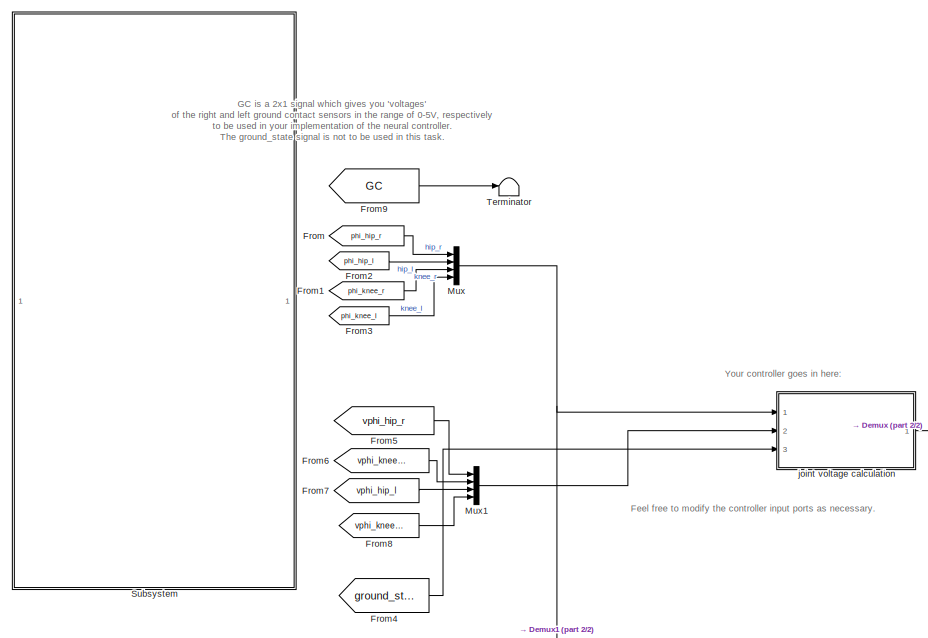
[diagram: root canvas - part 1/2, middle left region]
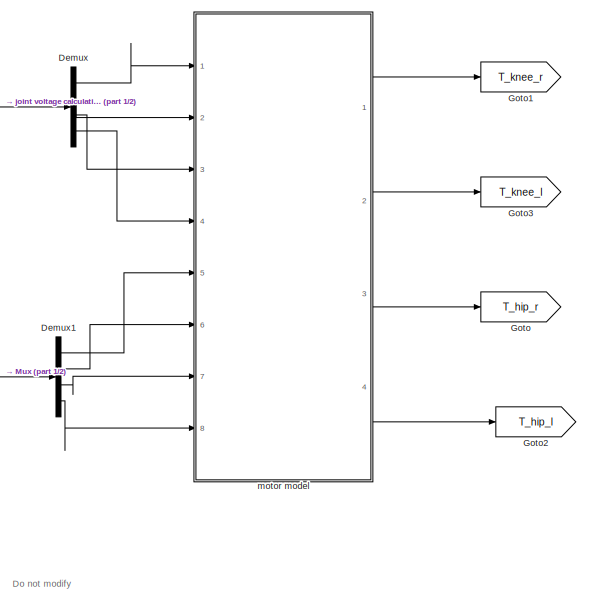
[diagram: root canvas - part 2/2, bottom right region]
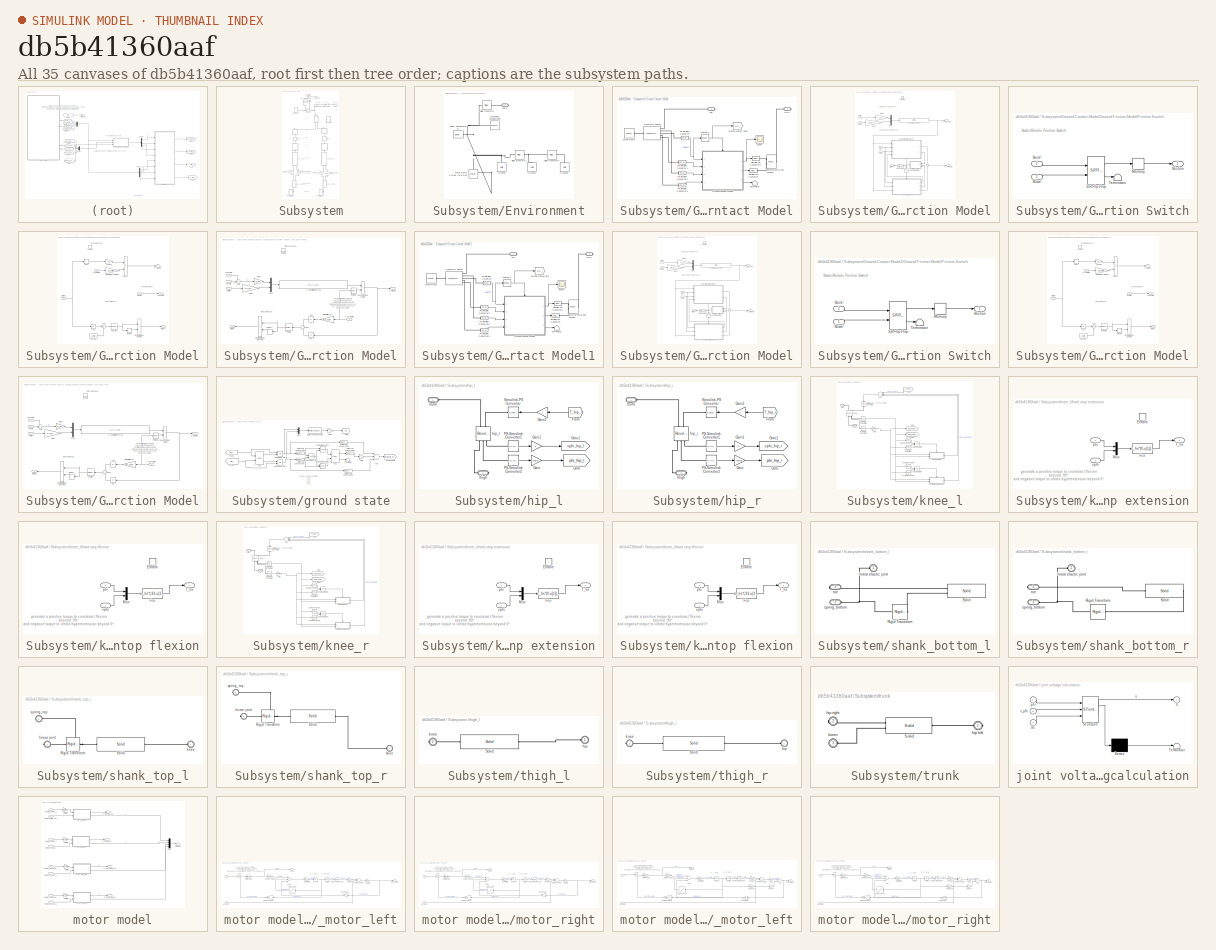
[diagram: thumbnail index - all 35 canvases of the model, root first then tree order]
MODEL slx_db5b41360aaf
KIND model
CONFIG AbsTol = absTol
CONFIG EnableMultiTasking = off
CONFIG FixedStep = auto
CONFIG InitFcn = Fox_param;
CONFIG MaxStep = maxStep
CONFIG MinStep = auto
CONFIG RelTol = relTol
CONFIG SampleTimeConstraint = Unconstrained
CONFIG Solver = ode23s
CONFIG SolverName = ode23s
CONFIG StartTime = 0.0
CONFIG StopTime = 10
BLOCK [Demux] Demux
  DisplayOption = bar
  Ports = [1, 4]
BLOCK [Demux] Demux1
  DisplayOption = bar
  Ports = [1, 4]
BLOCK [From] From
  CloseFcn = tagdialog Close
  GotoTag = phi_hip_r
  TagVisibility = global
BLOCK [From] From1
  CloseFcn = tagdialog Close
  GotoTag = phi_knee_r
  TagVisibility = global
BLOCK [From] From2
  CloseFcn = tagdialog Close
  GotoTag = phi_hip_l
  TagVisibility = global
BLOCK [From] From3
  CloseFcn = tagdialog Close
  GotoTag = phi_knee_l
  TagVisibility = global
BLOCK [From] From4
  GotoTag = ground_state
  TagVisibility = global
BLOCK [From] From5
  CloseFcn = tagdialog Close
  GotoTag = vphi_hip_r
  TagVisibility = global
BLOCK [From] From6
  CloseFcn = tagdialog Close
  GotoTag = vphi_knee_r
  TagVisibility = global
BLOCK [From] From7
  CloseFcn = tagdialog Close
  GotoTag = vphi_hip_l
  TagVisibility = global
BLOCK [From] From8
  CloseFcn = tagdialog Close
  GotoTag = vphi_knee_l
  TagVisibility = global
BLOCK [From] From9
  GotoTag = GC
  TagVisibility = global
BLOCK [Goto] Goto
  GotoTag = T_hip_r
  TagVisibility = global
BLOCK [Goto] Goto1
  GotoTag = T_knee_r
  TagVisibility = global
BLOCK [Goto] Goto2
  GotoTag = T_hip_l
  TagVisibility = global
BLOCK [Goto] Goto3
  GotoTag = T_knee_l
  TagVisibility = global
BLOCK [Mux] Mux
  DisplayOption = bar
  Ports = [4, 1]
BLOCK [Mux] Mux1
  DisplayOption = bar
  Ports = [4, 1]
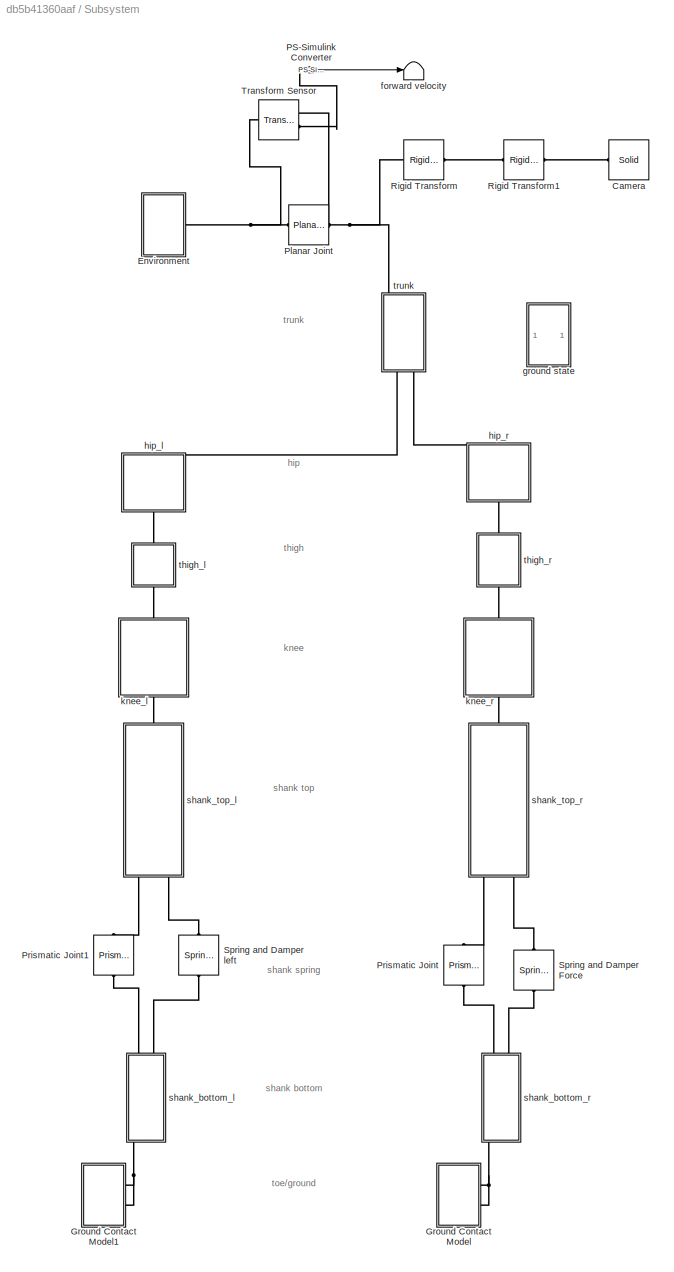
BLOCK [SubSystem] Subsystem
  Ports = []
  RequestExecContextInheritance = off
BLOCK [Reference] Subsystem/Camera  REF=sm_lib/Body Elements/Solid
  Ports = [0, 0, 0, 0, 0, 1]
  SourceBlock = sm_lib/Body Elements/Solid
  SourceProductBaseCode = MS
  SourceType = Solid
BLOCK [SubSystem] Subsystem/Environment
  Ports = [0, 0, 0, 0, 0, 0, 1]
  RequestExecContextInheritance = off
BLOCK [PMIOPort] Subsystem/Environment/Conn1
  Side = Right
BLOCK [Reference] Subsystem/Environment/Ground  REF=sm_lib/Body Elements/Solid
  Ports = [0, 0, 0, 0, 0, 0, 1]
  SourceBlock = sm_lib/Body Elements/Solid
  SourceProductBaseCode = MS
  SourceType = Solid
BLOCK [Reference] Subsystem/Environment/Ground1  REF=sm_lib/Body Elements/Solid
  Ports = [0, 0, 0, 0, 0, 1]
  SourceBlock = sm_lib/Body Elements/Solid
  SourceProductBaseCode = MS
  SourceType = Solid
BLOCK [Reference] Subsystem/Environment/Ground2  REF=sm_lib/Body Elements/Solid
  Ports = [0, 0, 0, 0, 0, 1]
  SourceBlock = sm_lib/Body Elements/Solid
  SourceProductBaseCode = MS
  SourceType = Solid
BLOCK [Reference] Subsystem/Environment/Mechanism Configuration  REF=sm_lib/Utilities/Mechanism
Configuration
  Ports = [0, 0, 0, 0, 0, 0, 1]
  SourceBlock = sm_lib/Utilities/Mechanism\nConfiguration
  SourceProductBaseCode = MS
  SourceType = Mechanism\nConfiguration
BLOCK [Reference] Subsystem/Environment/Rigid Transform  REF=sm_lib/Frames and
Transforms/Rigid
Transform
  Ports = [0, 0, 0, 0, 0, 1, 1]
  SourceBlock = sm_lib/Frames and\nTransforms/Rigid\nTransform
  SourceProductBaseCode = MS
  SourceType = Rigid\nTransform
BLOCK [Reference] Subsystem/Environment/Rigid Transform1  REF=sm_lib/Frames and
Transforms/Rigid
Transform
  Ports = [0, 0, 0, 0, 0, 1, 1]
  SourceBlock = sm_lib/Frames and\nTransforms/Rigid\nTransform
  SourceProductBaseCode = MS
  SourceType = Rigid\nTransform
BLOCK [Reference] Subsystem/Environment/Rigid Transform2  REF=sm_lib/Frames and
Transforms/Rigid
Transform
  Ports = [0, 0, 0, 0, 0, 1, 1]
  SourceBlock = sm_lib/Frames and\nTransforms/Rigid\nTransform
  SourceProductBaseCode = MS
  SourceType = Rigid\nTransform
BLOCK [Reference] Subsystem/Environment/Solver Configuration1  REF=nesl_utility/Solver
Configuration
  Ports = [0, 0, 0, 0, 0, 0, 1]
  SourceBlock = nesl_utility/Solver\nConfiguration
  SourceProductBaseCode = SS
  SourceType = Solver\nConfiguration
BLOCK [Reference] Subsystem/Environment/World Frame X-forward Y-lateral Z-up  REF=sm_lib/Frames and
Transforms/World Frame
  Ports = [0, 0, 0, 0, 0, 0, 1]
  SourceBlock = sm_lib/Frames and\nTransforms/World Frame
  SourceProductBaseCode = MS
  SourceType = World Frame
BLOCK [SubSystem] Subsystem/Ground Contact Model
  Ports = [0, 0, 0, 0, 0, 0, 2]
  RequestExecContextInheritance = off
BLOCK [Reference] Subsystem/Ground Contact Model/External Force and Torque  REF=sm_lib/Forces and
Torques/External Force
and Torque
  Ports = [0, 0, 0, 0, 0, 2, 1]
  SourceBlock = sm_lib/Forces and\nTorques/External Force\nand Torque
  SourceProductBaseCode = MS
  SourceType = External Force\nand Torque
BLOCK [PMIOPort] Subsystem/Ground Contact Model/GRF
  Port = 2
  Side = Right
BLOCK [SubSystem] Subsystem/Ground Contact Model/Ground Friction Model
  Ports = [4, 3, 1]
  RequestExecContextInheritance = off
BLOCK [EnablePort] Subsystem/Ground Contact Model/Ground Friction Model/Contact!
  Ports = []
  PropagateVarSize = During execution
  StatesWhenEnabling = reset
BLOCK [DataTypeConversion] Subsystem/Ground Contact Model/Ground Friction Model/Data Type Conversion
  OutDataTypeStr = double
  RndMeth = Floor
  SaturateOnIntegerOverflow = off
BLOCK [SubSystem] Subsystem/Ground Contact Model/Ground Friction Model/Friction Switch
  Ports = [2, 1]
  RequestExecContextInheritance = off
BLOCK [Memory] Subsystem/Ground Contact Model/Ground Friction Model/Friction Switch/Memory
BLOCK [Reference] Subsystem/Ground Contact Model/Ground Friction Model/Friction Switch/S-R Flip-Flop  REF=simulink_extras/Flip Flops/S-R
Flip-Flop
  Ports = [2, 2]
  SourceBlock = simulink_extras/Flip Flops/S-R\nFlip-Flop
  SourceProductBaseCode = SL
  SourceType = SRFlipFlop
BLOCK [Inport] Subsystem/Ground Contact Model/Ground Friction Model/Friction Switch/Slide!
  IconDisplay = Port number
BLOCK [Inport] Subsystem/Ground Contact Model/Ground Friction Model/Friction Switch/Stick!
  IconDisplay = Port number
  Port = 2
BLOCK [Outport] Subsystem/Ground Contact Model/Ground Friction Model/Friction Switch/Stiction
  IconDisplay = Port number
BLOCK [Terminator] Subsystem/Ground Contact Model/Ground Friction Model/Friction Switch/Terminator
BLOCK [Outport] Subsystem/Ground Contact Model/Ground Friction Model/Fx_Friction [N]
  AttributesFormatString = initial = '%<InitialOutput>'\nwhen\ndisabled\n'%<OutputWhenDisabled>'
  IconDisplay = Port number
  InitialOutput = 0
  OutputWhenDisabled = reset
  Port = 2
BLOCK [Outport] Subsystem/Ground Contact Model/Ground Friction Model/Fy_Ground[N]
  AttributesFormatString = initial = '%<InitialOutput>'\nwhen disabled = '%<OutputWhenDisabled>'
  IconDisplay = Port number
  InitialOutput = 0
  OutputWhenDisabled = reset
BLOCK [Gain] Subsystem/Ground Contact Model/Ground Friction Model/Gain3
  Gain = k_gy
  OutDataTypeStr = Inherit: Inherit via internal rule
  ParamDataTypeStr = Inherit: Inherit via internal rule
  SaturateOnIntegerOverflow = off
BLOCK [Gain] Subsystem/Ground Contact Model/Ground Friction Model/Gain4
  Gain = 1/v_gy_max
  OutDataTypeStr = Inherit: Inherit via internal rule
  ParamDataTypeStr = Inherit: Inherit via internal rule
  SaturateOnIntegerOverflow = off
BLOCK [Logic] Subsystem/Ground Contact Model/Ground Friction Model/Logical Operator
  AllPortsSameDT = off
  Operator = NOT
  OutDataTypeStr = boolean
  Ports = [1, 1]
BLOCK [Mux] Subsystem/Ground Contact Model/Ground Friction Model/Mux1
  DisplayOption = bar
  Inputs = 2
  Ports = [2, 1]
BLOCK [Outport] Subsystem/Ground Contact Model/Ground Friction Model/Stiction!
  AttributesFormatString = initial = '%<InitialOutput>'\nwhen\ndisabled\n'%<OutputWhenDisabled>'
  IconDisplay = Port number
  InitialOutput = 0
  OutputWhenDisabled = reset
  Port = 3
BLOCK [Sum] Subsystem/Ground Contact Model/Ground Friction Model/Sum1
  IconShape = round
  InputSameDT = off
  OutDataTypeStr = Inherit: Inherit via internal rule
  Ports = [2, 1]
  SaturateOnIntegerOverflow = off
BLOCK [SubSystem] Subsystem/Ground Contact Model/Ground Friction Model/X-Axis Kinetic Friction Model
  Ports = [3, 3, 1]
  RequestExecContextInheritance = off
BLOCK [Abs] Subsystem/Ground Contact Model/Ground Friction Model/X-Axis Kinetic Friction Model/Abs
  SaturateOnIntegerOverflow = off
BLOCK [Constant] Subsystem/Ground Contact Model/Ground Friction Model/X-Axis Kinetic Friction Model/Constant
  Value = vLimit
BLOCK [EnablePort] Subsystem/Ground Contact Model/Ground Friction Model/X-Axis Kinetic Friction Model/Enable
  Ports = []
  PropagateVarSize = During execution
  StatesWhenEnabling = reset
BLOCK [Inport] Subsystem/Ground Contact Model/Ground Friction Model/X-Axis Kinetic Friction Model/F_Normal [N]
  IconDisplay = Port number
  Port = 3
BLOCK [Outport] Subsystem/Ground Contact Model/Ground Friction Model/X-Axis Kinetic Friction Model/F_Slide [N]
  AttributesFormatString = initial = '%<InitialOutput>'\nwhen disabled = '%<OutputWhenDisabled>'
  IconDisplay = Port number
  InitialOutput = 0
  OutputWhenDisabled = reset
  Port = 3
BLOCK [RelationalOperator] Subsystem/Ground Contact Model/Ground Friction Model/X-Axis Kinetic Friction Model/FixPt Relational Operator
  InputSameDT = off
  Operator = >
  OutDataTypeStr = boolean
  Ports = [2, 1]
  ZeroCross = off
BLOCK [Memory] Subsystem/Ground Contact Model/Ground Friction Model/X-Axis Kinetic Friction Model/Memory
  InheritSampleTime = on
BLOCK [Reference] Subsystem/Ground Contact Model/Ground Friction Model/X-Axis Kinetic Friction Model/Negative  REF=simulink/Logic and Bit
Operations/Compare
To Zero
  Ports = [1, 1]
  SourceBlock = simulink/Logic and Bit\nOperations/Compare\nTo Zero
  SourceProductBaseCode = SL
  SourceType = Compare To Zero
BLOCK [Product] Subsystem/Ground Contact Model/Ground Friction Model/X-Axis Kinetic Friction Model/Product
  InputSameDT = off
  OutDataTypeStr = Inherit: Inherit via internal rule
  Ports = [2, 1]
  SaturateOnIntegerOverflow = off
BLOCK [Signum] Subsystem/Ground Contact Model/Ground Friction Model/X-Axis Kinetic Friction Model/Sign1
BLOCK [Outport] Subsystem/Ground Contact Model/Ground Friction Model/X-Axis Kinetic Friction Model/Stiction!
  AttributesFormatString = initial = '%<InitialOutput>'\nwhen disabled = '%<OutputWhenDisabled>'
  IconDisplay = Port number
  InitialOutput = 0
  OutputWhenDisabled = reset
  Port = 2
BLOCK [Sum] Subsystem/Ground Contact Model/Ground Friction Model/X-Axis Kinetic Friction Model/Sum
  IconShape = round
  InputSameDT = off
  Inputs = |+-
  OutDataTypeStr = Inherit: Inherit via internal rule
  Ports = [2, 1]
  SaturateOnIntegerOverflow = off
BLOCK [Inport] Subsystem/Ground Contact Model/Ground Friction Model/X-Axis Kinetic Friction Model/pos [m]
  IconDisplay = Port number
BLOCK [Outport] Subsystem/Ground Contact Model/Ground Friction Model/X-Axis Kinetic Friction Model/posFP [m]
  AttributesFormatString = initial = '%<InitialOutput>'\nwhen disabled = '%<OutputWhenDisabled>'
  IconDisplay = Port number
BLOCK [Gain] Subsystem/Ground Contact Model/Ground Friction Model/X-Axis Kinetic Friction Model/reverse
  Gain = -1
  OutDataTypeStr = Inherit: Inherit via internal rule
  ParamDataTypeStr = Inherit: Inherit via internal rule
  SaturateOnIntegerOverflow = off
BLOCK [Gain] Subsystem/Ground Contact Model/Ground Friction Model/X-Axis Kinetic Friction Model/sliding friction coefficient
  Gain = mu_slide
  OutDataTypeStr = Inherit: Inherit via internal rule
  ParamDataTypeStr = Inherit: Inherit via internal rule
  SaturateOnIntegerOverflow = off
BLOCK [Inport] Subsystem/Ground Contact Model/Ground Friction Model/X-Axis Kinetic Friction Model/vel [m//s]
  IconDisplay = Port number
  Port = 2
BLOCK [SubSystem] Subsystem/Ground Contact Model/Ground Friction Model/X-Axis Static Friction Model
  Ports = [4, 2, 1]
  RequestExecContextInheritance = off
BLOCK [Abs] Subsystem/Ground Contact Model/Ground Friction Model/X-Axis Static Friction Model/Abs
  SaturateOnIntegerOverflow = off
BLOCK [Abs] Subsystem/Ground Contact Model/Ground Friction Model/X-Axis Static Friction Model/Abs.
  SaturateOnIntegerOverflow = off
BLOCK [Product] Subsystem/Ground Contact Model/Ground Friction Model/X-Axis Static Friction Model/Check Vertical Friction
  InputSameDT = off
  OutDataTypeStr = Inherit: Inherit via internal rule
  Ports = [2, 1]
  SaturateOnIntegerOverflow = off
BLOCK [EnablePort] Subsystem/Ground Contact Model/Ground Friction Model/X-Axis Static Friction Model/Enable
  Ports = []
  PropagateVarSize = During execution
  StatesWhenEnabling = reset
BLOCK [Inport] Subsystem/Ground Contact Model/Ground Friction Model/X-Axis Static Friction Model/F_Normal [N]
  IconDisplay = Port number
BLOCK [Outport] Subsystem/Ground Contact Model/Ground Friction Model/X-Axis Static Friction Model/F_Stick [N]
  AttributesFormatString = when disabled: %<OutputWhenDisabled>\ninitial: %<InitialOutput>
  IconDisplay = Port number
  InitialOutput = 0
  OutputWhenDisabled = reset
BLOCK [RelationalOperator] Subsystem/Ground Contact Model/Ground Friction Model/X-Axis Static Friction Model/FixPt Relational Operator
  InputSameDT = off
  Operator = >
  OutDataTypeStr = boolean
  Ports = [2, 1]
  ZeroCross = off
BLOCK [Gain] Subsystem/Ground Contact Model/Ground Friction Model/X-Axis Static Friction Model/Gain3
  Gain = k_gx
  OutDataTypeStr = Inherit: Inherit via internal rule
  ParamDataTypeStr = Inherit: Inherit via internal rule
  SaturateOnIntegerOverflow = off
BLOCK [Gain] Subsystem/Ground Contact Model/Ground Friction Model/X-Axis Static Friction Model/Gain4
  Gain = 1/v_gx_max
  OutDataTypeStr = Inherit: Inherit via internal rule
  ParamDataTypeStr = Inherit: Inherit via internal rule
  SaturateOnIntegerOverflow = off
BLOCK [Memory] Subsystem/Ground Contact Model/Ground Friction Model/X-Axis Static Friction Model/Memory
BLOCK [Mux] Subsystem/Ground Contact Model/Ground Friction Model/X-Axis Static Friction Model/Mux1
  DisplayOption = bar
  Inputs = 2
  Ports = [2, 1]
BLOCK [Reference] Subsystem/Ground Contact Model/Ground Friction Model/X-Axis Static Friction Model/Positive  REF=simulink/Logic and Bit
Operations/Compare
To Zero
  Ports = [1, 1]
  SourceBlock = simulink/Logic and Bit\nOperations/Compare\nTo Zero
  SourceProductBaseCode = SL
  SourceType = Compare To Zero
BLOCK [Reference] Subsystem/Ground Contact Model/Ground Friction Model/X-Axis Static Friction Model/Positive1  REF=simulink/Logic and Bit
Operations/Compare
To Zero
  Ports = [1, 1]
  SourceBlock = simulink/Logic and Bit\nOperations/Compare\nTo Zero
  SourceProductBaseCode = SL
  SourceType = Compare To Zero
BLOCK [Outport] Subsystem/Ground Contact Model/Ground Friction Model/X-Axis Static Friction Model/Sliding!
  AttributesFormatString = when disabled: %<OutputWhenDisabled>\ninitial: %<InitialOutput>
  IconDisplay = Port number
  InitialOutput = 0
  OutputWhenDisabled = reset
  Port = 2
BLOCK [Sum] Subsystem/Ground Contact Model/Ground Friction Model/X-Axis Static Friction Model/Sum
  IconShape = round
  InputSameDT = off
  Inputs = -+
  OutDataTypeStr = Inherit: Inherit via internal rule
  Ports = [2, 1]
  SaturateOnIntegerOverflow = off
BLOCK [Sum] Subsystem/Ground Contact Model/Ground Friction Model/X-Axis Static Friction Model/Sum2
  IconShape = round
  InputSameDT = off
  Inputs = -+|
  OutDataTypeStr = Inherit: Inherit via internal rule
  Ports = [2, 1]
  SaturateOnIntegerOverflow = off
BLOCK [Fcn] Subsystem/Ground Contact Model/Ground Friction Model/X-Axis Static Friction Model/X-Axis Stiction Force2
  Expr = -u(1) * (1+sgn(u(1))*u(2)) * ( (1+sgn(u(1))*u(2))>0)
BLOCK [Inport] Subsystem/Ground Contact Model/Ground Friction Model/X-Axis Static Friction Model/pos [m]
  IconDisplay = Port number
  Port = 2
BLOCK [Inport] Subsystem/Ground Contact Model/Ground Friction Model/X-Axis Static Friction Model/posFP [m]
  IconDisplay = Port number
  Port = 4
BLOCK [Gain] Subsystem/Ground Contact Model/Ground Friction Model/X-Axis Static Friction Model/stiction limit force
  Gain = mu_stick
  OutDataTypeStr = Inherit: Inherit via internal rule
  ParamDataTypeStr = Inherit: Inherit via internal rule
  SaturateOnIntegerOverflow = off
BLOCK [Inport] Subsystem/Ground Contact Model/Ground Friction Model/X-Axis Static Friction Model/vel [m//s]
  IconDisplay = Port number
  Port = 3
BLOCK [Fcn] Subsystem/Ground Contact Model/Ground Friction Model/Y-Axis Ground Force
  Expr = - u(1)  *  (1-u(2)) * (u(2)<1)
BLOCK [Inport] Subsystem/Ground Contact Model/Ground Friction Model/dy [m]
  IconDisplay = Port number
BLOCK [Inport] Subsystem/Ground Contact Model/Ground Friction Model/vx [m//s]
  IconDisplay = Port number
  Port = 4
BLOCK [Inport] Subsystem/Ground Contact Model/Ground Friction Model/vy [m//s]
  IconDisplay = Port number
  Port = 2
BLOCK [Inport] Subsystem/Ground Contact Model/Ground Friction Model/x [m]
  IconDisplay = Port number
  Port = 3
BLOCK [Reference] Subsystem/Ground Contact Model/PS-Simulink Converter  REF=nesl_utility/PS-Simulink
Converter
  Ports = [0, 1, 0, 0, 0, 1]
  SourceBlock = nesl_utility/PS-Simulink\nConverter
  SourceProductBaseCode = SS
  SourceType = PS-Simulink\nConverter
BLOCK [Reference] Subsystem/Ground Contact Model/PS-Simulink Converter1  REF=nesl_utility/PS-Simulink
Converter
  Ports = [0, 1, 0, 0, 0, 1]
  SourceBlock = nesl_utility/PS-Simulink\nConverter
  SourceProductBaseCode = SS
  SourceType = PS-Simulink\nConverter
BLOCK [Reference] Subsystem/Ground Contact Model/PS-Simulink Converter2  REF=nesl_utility/PS-Simulink
Converter
  Ports = [0, 1, 0, 0, 0, 1]
  SourceBlock = nesl_utility/PS-Simulink\nConverter
  SourceProductBaseCode = SS
  SourceType = PS-Simulink\nConverter
BLOCK [Reference] Subsystem/Ground Contact Model/PS-Simulink Converter3  REF=nesl_utility/PS-Simulink
Converter
  Ports = [0, 1, 0, 0, 0, 1]
  SourceBlock = nesl_utility/PS-Simulink\nConverter
  SourceProductBaseCode = SS
  SourceType = PS-Simulink\nConverter
BLOCK [Scope] Subsystem/Ground Contact Model/Scope
  Floating = off
  NumInputPorts = 1
  Ports = [1]
  ScopeSpecificationString = Simulink.scopes.TimeScopeBlockCfg('CurrentConfiguration', extmgr.ConfigurationSet(extmgr.Configuration('Core','General UI',true),extmgr.Configuration('Core','Source UI',true),extmgr.Configuration('Sources','WiredSimulink',true,'DataLoggingVariableName','ScopeData1'),extmgr.Configuration('Visuals','Time Domain',true,'SerializedDisplays',{struct('MinYLimReal','-0.95915','MaxYLimReal','3.8366','YLabe...<+1397ch>
BLOCK [Reference] Subsystem/Ground Contact Model/Simulink-PS Converter  REF=nesl_utility/Simulink-PS
Converter
  Ports = [1, 0, 0, 0, 0, 0, 1]
  SourceBlock = nesl_utility/Simulink-PS\nConverter
  SourceProductBaseCode = SS
  SourceType = Simulink-PS\nConverter
BLOCK [Reference] Subsystem/Ground Contact Model/Simulink-PS Converter1  REF=nesl_utility/Simulink-PS
Converter
  Ports = [1, 0, 0, 0, 0, 0, 1]
  SourceBlock = nesl_utility/Simulink-PS\nConverter
  SourceProductBaseCode = SS
  SourceType = Simulink-PS\nConverter
BLOCK [Terminator] Subsystem/Ground Contact Model/Terminator
BLOCK [PMIOPort] Subsystem/Ground Contact Model/Toe
  Side = Right
BLOCK [Reference] Subsystem/Ground Contact Model/Transform Sensor  REF=sm_lib/Frames and
Transforms/Transform
Sensor
  Ports = [0, 0, 0, 0, 0, 1, 5]
  SourceBlock = sm_lib/Frames and\nTransforms/Transform\nSensor
  SourceProductBaseCode = MS
  SourceType = Transform\nSensor
BLOCK [Reference] Subsystem/Ground Contact Model/World Frame  REF=sm_lib/Frames and
Transforms/World Frame
  Ports = [0, 0, 0, 0, 0, 0, 1]
  SourceBlock = sm_lib/Frames and\nTransforms/World Frame
  SourceProductBaseCode = MS
  SourceType = World Frame
BLOCK [Reference] Subsystem/Ground Contact Model/contact?  REF=simulink/Logic and Bit
Operations/Compare
To Zero
  Ports = [1, 1]
  SourceBlock = simulink/Logic and Bit\nOperations/Compare\nTo Zero
  SourceProductBaseCode = SL
  SourceType = Compare To Zero
BLOCK [Goto] Subsystem/Ground Contact Model/ground contact right
  GotoTag = GC_r
  TagVisibility = global
BLOCK [SubSystem] Subsystem/Ground Contact Model1
  Ports = [0, 0, 0, 0, 0, 0, 2]
  RequestExecContextInheritance = off
BLOCK [Reference] Subsystem/Ground Contact Model1/External Force and Torque  REF=sm_lib/Forces and
Torques/External Force
and Torque
  Ports = [0, 0, 0, 0, 0, 2, 1]
  SourceBlock = sm_lib/Forces and\nTorques/External Force\nand Torque
  SourceProductBaseCode = MS
  SourceType = External Force\nand Torque
BLOCK [PMIOPort] Subsystem/Ground Contact Model1/GRF
  Port = 2
  Side = Right
BLOCK [SubSystem] Subsystem/Ground Contact Model1/Ground Friction Model
  Ports = [4, 3, 1]
  RequestExecContextInheritance = off
BLOCK [EnablePort] Subsystem/Ground Contact Model1/Ground Friction Model/Contact!
  Ports = []
  PropagateVarSize = During execution
  StatesWhenEnabling = reset
BLOCK [DataTypeConversion] Subsystem/Ground Contact Model1/Ground Friction Model/Data Type Conversion
  OutDataTypeStr = double
  RndMeth = Floor
  SaturateOnIntegerOverflow = off
BLOCK [SubSystem] Subsystem/Ground Contact Model1/Ground Friction Model/Friction Switch
  Ports = [2, 1]
  RequestExecContextInheritance = off
BLOCK [Memory] Subsystem/Ground Contact Model1/Ground Friction Model/Friction Switch/Memory
BLOCK [Reference] Subsystem/Ground Contact Model1/Ground Friction Model/Friction Switch/S-R Flip-Flop  REF=simulink_extras/Flip Flops/S-R
Flip-Flop
  Ports = [2, 2]
  SourceBlock = simulink_extras/Flip Flops/S-R\nFlip-Flop
  SourceProductBaseCode = SL
  SourceType = SRFlipFlop
BLOCK [Inport] Subsystem/Ground Contact Model1/Ground Friction Model/Friction Switch/Slide!
  IconDisplay = Port number
BLOCK [Inport] Subsystem/Ground Contact Model1/Ground Friction Model/Friction Switch/Stick!
  IconDisplay = Port number
  Port = 2
BLOCK [Outport] Subsystem/Ground Contact Model1/Ground Friction Model/Friction Switch/Stiction
  IconDisplay = Port number
BLOCK [Terminator] Subsystem/Ground Contact Model1/Ground Friction Model/Friction Switch/Terminator
BLOCK [Outport] Subsystem/Ground Contact Model1/Ground Friction Model/Fx_Friction [N]
  AttributesFormatString = initial = '%<InitialOutput>'\nwhen\ndisabled\n'%<OutputWhenDisabled>'
  IconDisplay = Port number
  InitialOutput = 0
  OutputWhenDisabled = reset
  Port = 2
BLOCK [Outport] Subsystem/Ground Contact Model1/Ground Friction Model/Fy_Ground[N]
  AttributesFormatString = initial = '%<InitialOutput>'\nwhen disabled = '%<OutputWhenDisabled>'
  IconDisplay = Port number
  InitialOutput = 0
  OutputWhenDisabled = reset
BLOCK [Gain] Subsystem/Ground Contact Model1/Ground Friction Model/Gain3
  Gain = k_gy
  OutDataTypeStr = Inherit: Inherit via internal rule
  ParamDataTypeStr = Inherit: Inherit via internal rule
  SaturateOnIntegerOverflow = off
BLOCK [Gain] Subsystem/Ground Contact Model1/Ground Friction Model/Gain4
  Gain = 1/v_gy_max
  OutDataTypeStr = Inherit: Inherit via internal rule
  ParamDataTypeStr = Inherit: Inherit via internal rule
  SaturateOnIntegerOverflow = off
BLOCK [Logic] Subsystem/Ground Contact Model1/Ground Friction Model/Logical Operator
  AllPortsSameDT = off
  Operator = NOT
  OutDataTypeStr = boolean
  Ports = [1, 1]
BLOCK [Mux] Subsystem/Ground Contact Model1/Ground Friction Model/Mux1
  DisplayOption = bar
  Inputs = 2
  Ports = [2, 1]
BLOCK [Outport] Subsystem/Ground Contact Model1/Ground Friction Model/Stiction!
  AttributesFormatString = initial = '%<InitialOutput>'\nwhen\ndisabled\n'%<OutputWhenDisabled>'
  IconDisplay = Port number
  InitialOutput = 0
  OutputWhenDisabled = reset
  Port = 3
BLOCK [Sum] Subsystem/Ground Contact Model1/Ground Friction Model/Sum1
  IconShape = round
  InputSameDT = off
  OutDataTypeStr = Inherit: Inherit via internal rule
  Ports = [2, 1]
  SaturateOnIntegerOverflow = off
BLOCK [SubSystem] Subsystem/Ground Contact Model1/Ground Friction Model/X-Axis Kinetic Friction Model
  Ports = [3, 3, 1]
  RequestExecContextInheritance = off
BLOCK [Abs] Subsystem/Ground Contact Model1/Ground Friction Model/X-Axis Kinetic Friction Model/Abs
  SaturateOnIntegerOverflow = off
BLOCK [Constant] Subsystem/Ground Contact Model1/Ground Friction Model/X-Axis Kinetic Friction Model/Constant
  Value = vLimit
BLOCK [EnablePort] Subsystem/Ground Contact Model1/Ground Friction Model/X-Axis Kinetic Friction Model/Enable
  Ports = []
  PropagateVarSize = During execution
  StatesWhenEnabling = reset
BLOCK [Inport] Subsystem/Ground Contact Model1/Ground Friction Model/X-Axis Kinetic Friction Model/F_Normal [N]
  IconDisplay = Port number
  Port = 3
BLOCK [Outport] Subsystem/Ground Contact Model1/Ground Friction Model/X-Axis Kinetic Friction Model/F_Slide [N]
  AttributesFormatString = initial = '%<InitialOutput>'\nwhen disabled = '%<OutputWhenDisabled>'
  IconDisplay = Port number
  InitialOutput = 0
  OutputWhenDisabled = reset
  Port = 3
BLOCK [RelationalOperator] Subsystem/Ground Contact Model1/Ground Friction Model/X-Axis Kinetic Friction Model/FixPt Relational Operator
  InputSameDT = off
  Operator = >
  OutDataTypeStr = boolean
  Ports = [2, 1]
  ZeroCross = off
BLOCK [Memory] Subsystem/Ground Contact Model1/Ground Friction Model/X-Axis Kinetic Friction Model/Memory
  InheritSampleTime = on
BLOCK [Reference] Subsystem/Ground Contact Model1/Ground Friction Model/X-Axis Kinetic Friction Model/Negative  REF=simulink/Logic and Bit
Operations/Compare
To Zero
  Ports = [1, 1]
  SourceBlock = simulink/Logic and Bit\nOperations/Compare\nTo Zero
  SourceProductBaseCode = SL
  SourceType = Compare To Zero
BLOCK [Product] Subsystem/Ground Contact Model1/Ground Friction Model/X-Axis Kinetic Friction Model/Product
  InputSameDT = off
  OutDataTypeStr = Inherit: Inherit via internal rule
  Ports = [2, 1]
  SaturateOnIntegerOverflow = off
BLOCK [Signum] Subsystem/Ground Contact Model1/Ground Friction Model/X-Axis Kinetic Friction Model/Sign1
BLOCK [Outport] Subsystem/Ground Contact Model1/Ground Friction Model/X-Axis Kinetic Friction Model/Stiction!
  AttributesFormatString = initial = '%<InitialOutput>'\nwhen disabled = '%<OutputWhenDisabled>'
  IconDisplay = Port number
  InitialOutput = 0
  OutputWhenDisabled = reset
  Port = 2
BLOCK [Sum] Subsystem/Ground Contact Model1/Ground Friction Model/X-Axis Kinetic Friction Model/Sum
  IconShape = round
  InputSameDT = off
  Inputs = |+-
  OutDataTypeStr = Inherit: Inherit via internal rule
  Ports = [2, 1]
  SaturateOnIntegerOverflow = off
BLOCK [Inport] Subsystem/Ground Contact Model1/Ground Friction Model/X-Axis Kinetic Friction Model/pos [m]
  IconDisplay = Port number
BLOCK [Outport] Subsystem/Ground Contact Model1/Ground Friction Model/X-Axis Kinetic Friction Model/posFP [m]
  AttributesFormatString = initial = '%<InitialOutput>'\nwhen disabled = '%<OutputWhenDisabled>'
  IconDisplay = Port number
BLOCK [Gain] Subsystem/Ground Contact Model1/Ground Friction Model/X-Axis Kinetic Friction Model/reverse
  Gain = -1
  OutDataTypeStr = Inherit: Inherit via internal rule
  ParamDataTypeStr = Inherit: Inherit via internal rule
  SaturateOnIntegerOverflow = off
BLOCK [Gain] Subsystem/Ground Contact Model1/Ground Friction Model/X-Axis Kinetic Friction Model/sliding friction coefficient
  Gain = mu_slide
  OutDataTypeStr = Inherit: Inherit via internal rule
  ParamDataTypeStr = Inherit: Inherit via internal rule
  SaturateOnIntegerOverflow = off
BLOCK [Inport] Subsystem/Ground Contact Model1/Ground Friction Model/X-Axis Kinetic Friction Model/vel [m//s]
  IconDisplay = Port number
  Port = 2
BLOCK [SubSystem] Subsystem/Ground Contact Model1/Ground Friction Model/X-Axis Static Friction Model
  Ports = [4, 2, 1]
  RequestExecContextInheritance = off
BLOCK [Abs] Subsystem/Ground Contact Model1/Ground Friction Model/X-Axis Static Friction Model/Abs
  SaturateOnIntegerOverflow = off
BLOCK [Abs] Subsystem/Ground Contact Model1/Ground Friction Model/X-Axis Static Friction Model/Abs.
  SaturateOnIntegerOverflow = off
BLOCK [Product] Subsystem/Ground Contact Model1/Ground Friction Model/X-Axis Static Friction Model/Check Vertical Friction
  InputSameDT = off
  OutDataTypeStr = Inherit: Inherit via internal rule
  Ports = [2, 1]
  SaturateOnIntegerOverflow = off
BLOCK [EnablePort] Subsystem/Ground Contact Model1/Ground Friction Model/X-Axis Static Friction Model/Enable
  Ports = []
  PropagateVarSize = During execution
  StatesWhenEnabling = reset
BLOCK [Inport] Subsystem/Ground Contact Model1/Ground Friction Model/X-Axis Static Friction Model/F_Normal [N]
  IconDisplay = Port number
BLOCK [Outport] Subsystem/Ground Contact Model1/Ground Friction Model/X-Axis Static Friction Model/F_Stick [N]
  AttributesFormatString = when disabled: %<OutputWhenDisabled>\ninitial: %<InitialOutput>
  IconDisplay = Port number
  InitialOutput = 0
  OutputWhenDisabled = reset
BLOCK [RelationalOperator] Subsystem/Ground Contact Model1/Ground Friction Model/X-Axis Static Friction Model/FixPt Relational Operator
  InputSameDT = off
  Operator = >
  OutDataTypeStr = boolean
  Ports = [2, 1]
  ZeroCross = off
BLOCK [Gain] Subsystem/Ground Contact Model1/Ground Friction Model/X-Axis Static Friction Model/Gain3
  Gain = k_gx
  OutDataTypeStr = Inherit: Inherit via internal rule
  ParamDataTypeStr = Inherit: Inherit via internal rule
  SaturateOnIntegerOverflow = off
BLOCK [Gain] Subsystem/Ground Contact Model1/Ground Friction Model/X-Axis Static Friction Model/Gain4
  Gain = 1/v_gx_max
  OutDataTypeStr = Inherit: Inherit via internal rule
  ParamDataTypeStr = Inherit: Inherit via internal rule
  SaturateOnIntegerOverflow = off
BLOCK [Memory] Subsystem/Ground Contact Model1/Ground Friction Model/X-Axis Static Friction Model/Memory
BLOCK [Mux] Subsystem/Ground Contact Model1/Ground Friction Model/X-Axis Static Friction Model/Mux1
  DisplayOption = bar
  Inputs = 2
  Ports = [2, 1]
BLOCK [Reference] Subsystem/Ground Contact Model1/Ground Friction Model/X-Axis Static Friction Model/Positive  REF=simulink/Logic and Bit
Operations/Compare
To Zero
  Ports = [1, 1]
  SourceBlock = simulink/Logic and Bit\nOperations/Compare\nTo Zero
  SourceProductBaseCode = SL
  SourceType = Compare To Zero
BLOCK [Reference] Subsystem/Ground Contact Model1/Ground Friction Model/X-Axis Static Friction Model/Positive1  REF=simulink/Logic and Bit
Operations/Compare
To Zero
  Ports = [1, 1]
  SourceBlock = simulink/Logic and Bit\nOperations/Compare\nTo Zero
  SourceProductBaseCode = SL
  SourceType = Compare To Zero
BLOCK [Outport] Subsystem/Ground Contact Model1/Ground Friction Model/X-Axis Static Friction Model/Sliding!
  AttributesFormatString = when disabled: %<OutputWhenDisabled>\ninitial: %<InitialOutput>
  IconDisplay = Port number
  InitialOutput = 0
  OutputWhenDisabled = reset
  Port = 2
BLOCK [Sum] Subsystem/Ground Contact Model1/Ground Friction Model/X-Axis Static Friction Model/Sum
  IconShape = round
  InputSameDT = off
  Inputs = -+
  OutDataTypeStr = Inherit: Inherit via internal rule
  Ports = [2, 1]
  SaturateOnIntegerOverflow = off
BLOCK [Sum] Subsystem/Ground Contact Model1/Ground Friction Model/X-Axis Static Friction Model/Sum2
  IconShape = round
  InputSameDT = off
  Inputs = -+|
  OutDataTypeStr = Inherit: Inherit via internal rule
  Ports = [2, 1]
  SaturateOnIntegerOverflow = off
BLOCK [Fcn] Subsystem/Ground Contact Model1/Ground Friction Model/X-Axis Static Friction Model/X-Axis Stiction Force2
  Expr = -u(1) * (1+sgn(u(1))*u(2)) * ( (1+sgn(u(1))*u(2))>0)
BLOCK [Inport] Subsystem/Ground Contact Model1/Ground Friction Model/X-Axis Static Friction Model/pos [m]
  IconDisplay = Port number
  Port = 2
BLOCK [Inport] Subsystem/Ground Contact Model1/Ground Friction Model/X-Axis Static Friction Model/posFP [m]
  IconDisplay = Port number
  Port = 4
BLOCK [Gain] Subsystem/Ground Contact Model1/Ground Friction Model/X-Axis Static Friction Model/stiction limit force
  Gain = mu_stick
  OutDataTypeStr = Inherit: Inherit via internal rule
  ParamDataTypeStr = Inherit: Inherit via internal rule
  SaturateOnIntegerOverflow = off
BLOCK [Inport] Subsystem/Ground Contact Model1/Ground Friction Model/X-Axis Static Friction Model/vel [m//s]
  IconDisplay = Port number
  Port = 3
BLOCK [Fcn] Subsystem/Ground Contact Model1/Ground Friction Model/Y-Axis Ground Force
  Expr = - u(1)  *  (1-u(2)) * (u(2)<1)
BLOCK [Inport] Subsystem/Ground Contact Model1/Ground Friction Model/dy [m]
  IconDisplay = Port number
BLOCK [Inport] Subsystem/Ground Contact Model1/Ground Friction Model/vx [m//s]
  IconDisplay = Port number
  Port = 4
BLOCK [Inport] Subsystem/Ground Contact Model1/Ground Friction Model/vy [m//s]
  IconDisplay = Port number
  Port = 2
BLOCK [Inport] Subsystem/Ground Contact Model1/Ground Friction Model/x [m]
  IconDisplay = Port number
  Port = 3
BLOCK [Reference] Subsystem/Ground Contact Model1/PS-Simulink Converter  REF=nesl_utility/PS-Simulink
Converter
  Ports = [0, 1, 0, 0, 0, 1]
  SourceBlock = nesl_utility/PS-Simulink\nConverter
  SourceProductBaseCode = SS
  SourceType = PS-Simulink\nConverter
BLOCK [Reference] Subsystem/Ground Contact Model1/PS-Simulink Converter1  REF=nesl_utility/PS-Simulink
Converter
  Ports = [0, 1, 0, 0, 0, 1]
  SourceBlock = nesl_utility/PS-Simulink\nConverter
  SourceProductBaseCode = SS
  SourceType = PS-Simulink\nConverter
BLOCK [Reference] Subsystem/Ground Contact Model1/PS-Simulink Converter2  REF=nesl_utility/PS-Simulink
Converter
  Ports = [0, 1, 0, 0, 0, 1]
  SourceBlock = nesl_utility/PS-Simulink\nConverter
  SourceProductBaseCode = SS
  SourceType = PS-Simulink\nConverter
BLOCK [Reference] Subsystem/Ground Contact Model1/PS-Simulink Converter3  REF=nesl_utility/PS-Simulink
Converter
  Ports = [0, 1, 0, 0, 0, 1]
  SourceBlock = nesl_utility/PS-Simulink\nConverter
  SourceProductBaseCode = SS
  SourceType = PS-Simulink\nConverter
BLOCK [Scope] Subsystem/Ground Contact Model1/Scope
  Floating = off
  NumInputPorts = 1
  Ports = [1]
  ScopeSpecificationString = Simulink.scopes.TimeScopeBlockCfg('CurrentConfiguration', extmgr.ConfigurationSet(extmgr.Configuration('Core','General UI',true),extmgr.Configuration('Core','Source UI',true),extmgr.Configuration('Sources','WiredSimulink',true,'DataLoggingVariableName','ScopeData1'),extmgr.Configuration('Visuals','Time Domain',true,'SerializedDisplays',{struct('MinYLimReal','-0.95915','MaxYLimReal','3.8366','YLabe...<+1397ch>
BLOCK [Reference] Subsystem/Ground Contact Model1/Simulink-PS Converter  REF=nesl_utility/Simulink-PS
Converter
  Ports = [1, 0, 0, 0, 0, 0, 1]
  SourceBlock = nesl_utility/Simulink-PS\nConverter
  SourceProductBaseCode = SS
  SourceType = Simulink-PS\nConverter
BLOCK [Reference] Subsystem/Ground Contact Model1/Simulink-PS Converter1  REF=nesl_utility/Simulink-PS
Converter
  Ports = [1, 0, 0, 0, 0, 0, 1]
  SourceBlock = nesl_utility/Simulink-PS\nConverter
  SourceProductBaseCode = SS
  SourceType = Simulink-PS\nConverter
BLOCK [Terminator] Subsystem/Ground Contact Model1/Terminator
BLOCK [PMIOPort] Subsystem/Ground Contact Model1/Toe
  Side = Right
BLOCK [Reference] Subsystem/Ground Contact Model1/Transform Sensor  REF=sm_lib/Frames and
Transforms/Transform
Sensor
  Ports = [0, 0, 0, 0, 0, 1, 5]
  SourceBlock = sm_lib/Frames and\nTransforms/Transform\nSensor
  SourceProductBaseCode = MS
  SourceType = Transform\nSensor
BLOCK [Reference] Subsystem/Ground Contact Model1/World Frame  REF=sm_lib/Frames and
Transforms/World Frame
  Ports = [0, 0, 0, 0, 0, 0, 1]
  SourceBlock = sm_lib/Frames and\nTransforms/World Frame
  SourceProductBaseCode = MS
  SourceType = World Frame
BLOCK [Reference] Subsystem/Ground Contact Model1/contact?  REF=simulink/Logic and Bit
Operations/Compare
To Zero
  Ports = [1, 1]
  SourceBlock = simulink/Logic and Bit\nOperations/Compare\nTo Zero
  SourceProductBaseCode = SL
  SourceType = Compare To Zero
BLOCK [Goto] Subsystem/Ground Contact Model1/ground contact left
  GotoTag = GC_l
  TagVisibility = global
BLOCK [Reference] Subsystem/PS-Simulink Converter  REF=nesl_utility/PS-Simulink
Converter
  Ports = [0, 1, 0, 0, 0, 1]
  SourceBlock = nesl_utility/PS-Simulink\nConverter
  SourceProductBaseCode = SS
  SourceType = PS-Simulink\nConverter
BLOCK [Reference] Subsystem/Planar Joint  REF=sm_lib/Joints/Planar Joint
  Ports = [0, 0, 0, 0, 0, 1, 1]
  SourceBlock = sm_lib/Joints/Planar Joint
  SourceProductBaseCode = MS
  SourceType = Planar Joint
BLOCK [Reference] Subsystem/Prismatic Joint  REF=sm_lib/Joints/Prismatic
Joint
  Ports = [0, 0, 0, 0, 0, 1, 1]
  SourceBlock = sm_lib/Joints/Prismatic\nJoint
  SourceProductBaseCode = MS
  SourceType = Prismatic\nJoint
BLOCK [Reference] Subsystem/Prismatic Joint1  REF=sm_lib/Joints/Prismatic
Joint
  Ports = [0, 0, 0, 0, 0, 1, 1]
  SourceBlock = sm_lib/Joints/Prismatic\nJoint
  SourceProductBaseCode = MS
  SourceType = Prismatic\nJoint
BLOCK [Reference] Subsystem/Rigid Transform  REF=sm_lib/Frames and
Transforms/Rigid
Transform
  Ports = [0, 0, 0, 0, 0, 1, 1]
  SourceBlock = sm_lib/Frames and\nTransforms/Rigid\nTransform
  SourceProductBaseCode = MS
  SourceType = Rigid\nTransform
BLOCK [Reference] Subsystem/Rigid Transform1  REF=sm_lib/Frames and
Transforms/Rigid
Transform
  Ports = [0, 0, 0, 0, 0, 1, 1]
  SourceBlock = sm_lib/Frames and\nTransforms/Rigid\nTransform
  SourceProductBaseCode = MS
  SourceType = Rigid\nTransform
BLOCK [Reference] Subsystem/Spring and Damper Force  REF=sm_lib/Forces and
Torques/Spring and
Damper Force
  Ports = [0, 0, 0, 0, 0, 1, 1]
  SourceBlock = sm_lib/Forces and\nTorques/Spring and\nDamper Force
  SourceProductBaseCode = MS
  SourceType = Spring and\nDamper Force
BLOCK [Reference] Subsystem/Spring and Damper left  REF=sm_lib/Forces and
Torques/Spring and
Damper Force
  Ports = [0, 0, 0, 0, 0, 1, 1]
  SourceBlock = sm_lib/Forces and\nTorques/Spring and\nDamper Force
  SourceProductBaseCode = MS
  SourceType = Spring and\nDamper Force
BLOCK [Reference] Subsystem/Transform Sensor  REF=sm_lib/Frames and
Transforms/Transform
Sensor
  Ports = [0, 0, 0, 0, 0, 1, 2]
  SourceBlock = sm_lib/Frames and\nTransforms/Transform\nSensor
  SourceProductBaseCode = MS
  SourceType = Transform\nSensor
BLOCK [Terminator] Subsystem/forward velocity
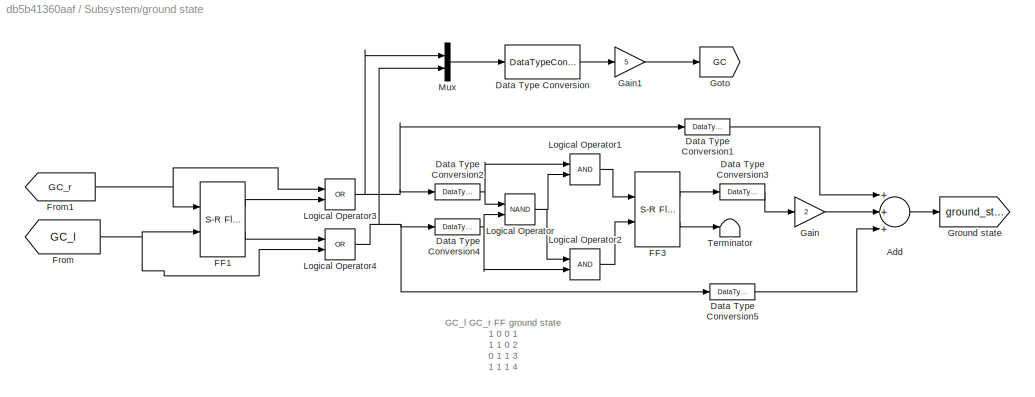
BLOCK [SubSystem] Subsystem/ground state
  Ports = []
  RequestExecContextInheritance = off
BLOCK [Sum] Subsystem/ground state/Add
  InputSameDT = off
  Inputs = +++
  OutDataTypeStr = Inherit: Inherit via internal rule
  Ports = [3, 1]
  SaturateOnIntegerOverflow = off
BLOCK [DataTypeConversion] Subsystem/ground state/Data Type Conversion
  OutDataTypeStr = double
  RndMeth = Floor
  SaturateOnIntegerOverflow = off
BLOCK [DataTypeConversion] Subsystem/ground state/Data Type Conversion1
  RndMeth = Floor
  SaturateOnIntegerOverflow = off
BLOCK [DataTypeConversion] Subsystem/ground state/Data Type Conversion2
  RndMeth = Floor
  SaturateOnIntegerOverflow = off
BLOCK [DataTypeConversion] Subsystem/ground state/Data Type Conversion3
  RndMeth = Floor
  SaturateOnIntegerOverflow = off
BLOCK [DataTypeConversion] Subsystem/ground state/Data Type Conversion4
  RndMeth = Floor
  SaturateOnIntegerOverflow = off
BLOCK [DataTypeConversion] Subsystem/ground state/Data Type Conversion5
  RndMeth = Floor
  SaturateOnIntegerOverflow = off
BLOCK [Reference] Subsystem/ground state/FF1  REF=simulink_extras/Flip Flops/S-R
Flip-Flop
  Ports = [2, 2]
  SourceBlock = simulink_extras/Flip Flops/S-R\nFlip-Flop
  SourceProductBaseCode = SL
  SourceType = SRFlipFlop
BLOCK [Reference] Subsystem/ground state/FF3  REF=simulink_extras/Flip Flops/S-R
Flip-Flop
  Ports = [2, 2]
  SourceBlock = simulink_extras/Flip Flops/S-R\nFlip-Flop
  SourceProductBaseCode = SL
  SourceType = SRFlipFlop
BLOCK [From] Subsystem/ground state/From
  GotoTag = GC_l
  TagVisibility = global
BLOCK [From] Subsystem/ground state/From1
  GotoTag = GC_r
  TagVisibility = global
BLOCK [Gain] Subsystem/ground state/Gain
  Gain = 2
  OutDataTypeStr = Inherit: Inherit via internal rule
  ParamDataTypeStr = Inherit: Inherit via internal rule
  SaturateOnIntegerOverflow = off
BLOCK [Gain] Subsystem/ground state/Gain1
  Gain = 5
  OutDataTypeStr = Inherit: Inherit via internal rule
  ParamDataTypeStr = Inherit: Inherit via internal rule
  SaturateOnIntegerOverflow = off
BLOCK [Goto] Subsystem/ground state/Goto
  GotoTag = GC
  TagVisibility = global
BLOCK [Goto] Subsystem/ground state/Ground state
  GotoTag = ground_state
  TagVisibility = global
BLOCK [Logic] Subsystem/ground state/Logical Operator
  AllPortsSameDT = off
  Operator = NAND
  OutDataTypeStr = boolean
  Ports = [2, 1]
BLOCK [Logic] Subsystem/ground state/Logical Operator1
  AllPortsSameDT = off
  OutDataTypeStr = boolean
  Ports = [2, 1]
BLOCK [Logic] Subsystem/ground state/Logical Operator2
  AllPortsSameDT = off
  OutDataTypeStr = boolean
  Ports = [2, 1]
BLOCK [Logic] Subsystem/ground state/Logical Operator3
  AllPortsSameDT = off
  Operator = OR
  OutDataTypeStr = boolean
  Ports = [2, 1]
BLOCK [Logic] Subsystem/ground state/Logical Operator4
  AllPortsSameDT = off
  Operator = OR
  OutDataTypeStr = boolean
  Ports = [2, 1]
BLOCK [Mux] Subsystem/ground state/Mux
  DisplayOption = bar
  Inputs = 2
  Ports = [2, 1]
BLOCK [Terminator] Subsystem/ground state/Terminator
BLOCK [SubSystem] Subsystem/hip_l
  Ports = [0, 0, 0, 0, 0, 1, 1]
  RequestExecContextInheritance = off
BLOCK [From] Subsystem/hip_l/From
  CloseFcn = tagdialog Close
  GotoTag = T_hip_l
  TagVisibility = global
BLOCK [Gain] Subsystem/hip_l/Gain
  Gain = -180/pi
  OutDataTypeStr = Inherit: Inherit via internal rule
  ParamDataTypeStr = Inherit: Inherit via internal rule
  SaturateOnIntegerOverflow = off
BLOCK [Gain] Subsystem/hip_l/Gain1
  Gain = -1
  OutDataTypeStr = Inherit: Inherit via internal rule
  ParamDataTypeStr = Inherit: Inherit via internal rule
  SaturateOnIntegerOverflow = off
BLOCK [Gain] Subsystem/hip_l/Gain2
  Gain = -1
  OutDataTypeStr = Inherit: Inherit via internal rule
  ParamDataTypeStr = Inherit: Inherit via internal rule
  SaturateOnIntegerOverflow = off
BLOCK [Goto] Subsystem/hip_l/Goto
  GotoTag = phi_hip_l
  TagVisibility = global
BLOCK [Goto] Subsystem/hip_l/Goto1
  GotoTag = vphi_hip_l
  TagVisibility = global
BLOCK [Reference] Subsystem/hip_l/PS-Simulink Converter1  REF=nesl_utility/PS-Simulink
Converter
  Ports = [0, 1, 0, 0, 0, 1]
  SourceBlock = nesl_utility/PS-Simulink\nConverter
  SourceProductBaseCode = SS
  SourceType = PS-Simulink\nConverter
BLOCK [Reference] Subsystem/hip_l/PS-Simulink Converter2  REF=nesl_utility/PS-Simulink
Converter
  Ports = [0, 1, 0, 0, 0, 1]
  SourceBlock = nesl_utility/PS-Simulink\nConverter
  SourceProductBaseCode = SS
  SourceType = PS-Simulink\nConverter
BLOCK [Reference] Subsystem/hip_l/Simulink-PS Converter  REF=nesl_utility/Simulink-PS
Converter
  Ports = [1, 0, 0, 0, 0, 0, 1]
  SourceBlock = nesl_utility/Simulink-PS\nConverter
  SourceProductBaseCode = SS
  SourceType = Simulink-PS\nConverter
BLOCK [Reference] Subsystem/hip_l/hip_l  REF=sm_lib/Joints/Revolute Joint
  Ports = [0, 0, 0, 0, 0, 2, 3]
  SourceBlock = sm_lib/Joints/Revolute Joint
  SourceProductBaseCode = MS
  SourceType = Revolute Joint
BLOCK [PMIOPort] Subsystem/hip_l/thigh
  Port = 2
  Side = Right
BLOCK [PMIOPort] Subsystem/hip_l/trunk
  Side = Left
BLOCK [SubSystem] Subsystem/hip_r
  Ports = [0, 0, 0, 0, 0, 1, 1]
  RequestExecContextInheritance = off
BLOCK [From] Subsystem/hip_r/From
  CloseFcn = tagdialog Close
  GotoTag = T_hip_r
  TagVisibility = global
BLOCK [Gain] Subsystem/hip_r/Gain
  Gain = -180/pi
  OutDataTypeStr = Inherit: Inherit via internal rule
  ParamDataTypeStr = Inherit: Inherit via internal rule
  SaturateOnIntegerOverflow = off
BLOCK [Gain] Subsystem/hip_r/Gain1
  Gain = -1
  OutDataTypeStr = Inherit: Inherit via internal rule
  ParamDataTypeStr = Inherit: Inherit via internal rule
  SaturateOnIntegerOverflow = off
BLOCK [Gain] Subsystem/hip_r/Gain2
  Gain = -1
  OutDataTypeStr = Inherit: Inherit via internal rule
  ParamDataTypeStr = Inherit: Inherit via internal rule
  SaturateOnIntegerOverflow = off
BLOCK [Goto] Subsystem/hip_r/Goto
  GotoTag = phi_hip_r
  TagVisibility = global
BLOCK [Goto] Subsystem/hip_r/Goto1
  GotoTag = vphi_hip_r
  TagVisibility = global
BLOCK [Reference] Subsystem/hip_r/PS-Simulink Converter1  REF=nesl_utility/PS-Simulink
Converter
  Ports = [0, 1, 0, 0, 0, 1]
  SourceBlock = nesl_utility/PS-Simulink\nConverter
  SourceProductBaseCode = SS
  SourceType = PS-Simulink\nConverter
BLOCK [Reference] Subsystem/hip_r/PS-Simulink Converter2  REF=nesl_utility/PS-Simulink
Converter
  Ports = [0, 1, 0, 0, 0, 1]
  SourceBlock = nesl_utility/PS-Simulink\nConverter
  SourceProductBaseCode = SS
  SourceType = PS-Simulink\nConverter
BLOCK [Reference] Subsystem/hip_r/Simulink-PS Converter  REF=nesl_utility/Simulink-PS
Converter
  Ports = [1, 0, 0, 0, 0, 0, 1]
  SourceBlock = nesl_utility/Simulink-PS\nConverter
  SourceProductBaseCode = SS
  SourceType = Simulink-PS\nConverter
BLOCK [Reference] Subsystem/hip_r/hip_r  REF=sm_lib/Joints/Revolute Joint
  Ports = [0, 0, 0, 0, 0, 2, 3]
  SourceBlock = sm_lib/Joints/Revolute Joint
  SourceProductBaseCode = MS
  SourceType = Revolute Joint
BLOCK [PMIOPort] Subsystem/hip_r/thigh
  Port = 2
  Side = Right
BLOCK [PMIOPort] Subsystem/hip_r/trunk
  Side = Left
BLOCK [SubSystem] Subsystem/knee_l
  Ports = [0, 0, 0, 0, 0, 1, 1]
  RequestExecContextInheritance = off
BLOCK [Sum] Subsystem/knee_l/Add
  InputSameDT = off
  Inputs = +++
  OutDataTypeStr = Inherit: Inherit via internal rule
  Ports = [3, 1]
  SaturateOnIntegerOverflow = off
BLOCK [Reference] Subsystem/knee_l/Compare To Constant  REF=simulink/Logic and Bit
Operations/Compare
To Constant
  Ports = [1, 1]
  SourceBlock = simulink/Logic and Bit\nOperations/Compare\nTo Constant
  SourceProductBaseCode = SL
  SourceType = Compare To Constant
BLOCK [Reference] Subsystem/knee_l/Compare To Zero  REF=simulink/Logic and Bit
Operations/Compare
To Zero
  Ports = [1, 1]
  SourceBlock = simulink/Logic and Bit\nOperations/Compare\nTo Zero
  SourceProductBaseCode = SL
  SourceType = Compare To Zero
BLOCK [Reference] Subsystem/knee_l/Compare To Zero1  REF=simulink/Logic and Bit
Operations/Compare
To Zero
  Ports = [1, 1]
  SourceBlock = simulink/Logic and Bit\nOperations/Compare\nTo Zero
  SourceProductBaseCode = SL
  SourceType = Compare To Zero
BLOCK [Reference] Subsystem/knee_l/Compare To Zero2  REF=simulink/Logic and Bit
Operations/Compare
To Zero
  Ports = [1, 1]
  SourceBlock = simulink/Logic and Bit\nOperations/Compare\nTo Zero
  SourceProductBaseCode = SL
  SourceType = Compare To Zero
BLOCK [From] Subsystem/knee_l/From
  CloseFcn = tagdialog Close
  GotoTag = T_knee_l
  TagVisibility = global
BLOCK [Gain] Subsystem/knee_l/Gain
  Gain = 180/pi
  OutDataTypeStr = Inherit: Inherit via internal rule
  ParamDataTypeStr = Inherit: Inherit via internal rule
  SaturateOnIntegerOverflow = off
BLOCK [Goto] Subsystem/knee_l/Goto
  GotoTag = phi_knee_l
  TagVisibility = global
BLOCK [Goto] Subsystem/knee_l/Goto1
  GotoTag = vphi_knee_l
  TagVisibility = global
BLOCK [Logic] Subsystem/knee_l/Logical Operator
  AllPortsSameDT = off
  OutDataTypeStr = boolean
  Ports = [2, 1]
BLOCK [Logic] Subsystem/knee_l/Logical Operator1
  AllPortsSameDT = off
  OutDataTypeStr = boolean
  Ports = [2, 1]
BLOCK [Reference] Subsystem/knee_l/PS-Simulink Converter1  REF=nesl_utility/PS-Simulink
Converter
  Ports = [0, 1, 0, 0, 0, 1]
  SourceBlock = nesl_utility/PS-Simulink\nConverter
  SourceProductBaseCode = SS
  SourceType = PS-Simulink\nConverter
BLOCK [Reference] Subsystem/knee_l/PS-Simulink Converter2  REF=nesl_utility/PS-Simulink
Converter
  Ports = [0, 1, 0, 0, 0, 1]
  SourceBlock = nesl_utility/PS-Simulink\nConverter
  SourceProductBaseCode = SS
  SourceType = PS-Simulink\nConverter
BLOCK [Reference] Subsystem/knee_l/Simulink-PS Converter  REF=nesl_utility/Simulink-PS
Converter
  Ports = [1, 0, 0, 0, 0, 0, 1]
  SourceBlock = nesl_utility/Simulink-PS\nConverter
  SourceProductBaseCode = SS
  SourceType = Simulink-PS\nConverter
BLOCK [SubSystem] Subsystem/knee_l/hard stop extension
  Ports = [2, 1, 1]
  RequestExecContextInheritance = off
  TreatAsAtomicUnit = on
BLOCK [EnablePort] Subsystem/knee_l/hard stop extension/Enable
  Ports = []
  PropagateVarSize = During execution
BLOCK [Fcn] Subsystem/knee_l/hard stop extension/Fcn
  Expr = c_hs*(0-u[1])-d_hs*u[2]
BLOCK [Mux] Subsystem/knee_l/hard stop extension/Mux
  DisplayOption = bar
  Inputs = 2
  Ports = [2, 1]
BLOCK [Outport] Subsystem/knee_l/hard stop extension/T_hs
  IconDisplay = Port number
  InitialOutput = 0
  OutputWhenDisabled = reset
BLOCK [Inport] Subsystem/knee_l/hard stop extension/phi
  IconDisplay = Port number
BLOCK [Inport] Subsystem/knee_l/hard stop extension/vphi
  IconDisplay = Port number
  Port = 2
BLOCK [SubSystem] Subsystem/knee_l/hard stop flexion
  Ports = [2, 1, 1]
  RequestExecContextInheritance = off
  TreatAsAtomicUnit = on
BLOCK [EnablePort] Subsystem/knee_l/hard stop flexion/Enable
  Ports = []
  PropagateVarSize = During execution
BLOCK [Fcn] Subsystem/knee_l/hard stop flexion/Fcn
  Expr = c_hs*(-92-u[1])-d_hs*u[2]
BLOCK [Mux] Subsystem/knee_l/hard stop flexion/Mux
  DisplayOption = bar
  Inputs = 2
  Ports = [2, 1]
BLOCK [Outport] Subsystem/knee_l/hard stop flexion/T_hs
  IconDisplay = Port number
  InitialOutput = 0
  OutputWhenDisabled = reset
BLOCK [Inport] Subsystem/knee_l/hard stop flexion/phi
  IconDisplay = Port number
BLOCK [Inport] Subsystem/knee_l/hard stop flexion/vphi
  IconDisplay = Port number
  Port = 2
BLOCK [Reference] Subsystem/knee_l/knee_l  REF=sm_lib/Joints/Revolute Joint
  Ports = [0, 0, 0, 0, 0, 2, 3]
  SourceBlock = sm_lib/Joints/Revolute Joint
  SourceProductBaseCode = MS
  SourceType = Revolute Joint
BLOCK [PMIOPort] Subsystem/knee_l/shank
  Port = 2
  Side = Right
BLOCK [PMIOPort] Subsystem/knee_l/thigh
  Side = Left
BLOCK [SubSystem] Subsystem/knee_r
  Ports = [0, 0, 0, 0, 0, 1, 1]
  RequestExecContextInheritance = off
BLOCK [Sum] Subsystem/knee_r/Add
  InputSameDT = off
  Inputs = +++
  OutDataTypeStr = Inherit: Inherit via internal rule
  Ports = [3, 1]
  SaturateOnIntegerOverflow = off
BLOCK [Reference] Subsystem/knee_r/Compare To Constant  REF=simulink/Logic and Bit
Operations/Compare
To Constant
  Ports = [1, 1]
  SourceBlock = simulink/Logic and Bit\nOperations/Compare\nTo Constant
  SourceProductBaseCode = SL
  SourceType = Compare To Constant
BLOCK [Reference] Subsystem/knee_r/Compare To Zero  REF=simulink/Logic and Bit
Operations/Compare
To Zero
  Ports = [1, 1]
  SourceBlock = simulink/Logic and Bit\nOperations/Compare\nTo Zero
  SourceProductBaseCode = SL
  SourceType = Compare To Zero
BLOCK [Reference] Subsystem/knee_r/Compare To Zero1  REF=simulink/Logic and Bit
Operations/Compare
To Zero
  Ports = [1, 1]
  SourceBlock = simulink/Logic and Bit\nOperations/Compare\nTo Zero
  SourceProductBaseCode = SL
  SourceType = Compare To Zero
BLOCK [Reference] Subsystem/knee_r/Compare To Zero2  REF=simulink/Logic and Bit
Operations/Compare
To Zero
  Ports = [1, 1]
  SourceBlock = simulink/Logic and Bit\nOperations/Compare\nTo Zero
  SourceProductBaseCode = SL
  SourceType = Compare To Zero
BLOCK [From] Subsystem/knee_r/From
  CloseFcn = tagdialog Close
  GotoTag = T_knee_r
  TagVisibility = global
BLOCK [Gain] Subsystem/knee_r/Gain
  Gain = 180/pi
  OutDataTypeStr = Inherit: Inherit via internal rule
  ParamDataTypeStr = Inherit: Inherit via internal rule
  SaturateOnIntegerOverflow = off
BLOCK [Goto] Subsystem/knee_r/Goto
  GotoTag = phi_knee_r
  TagVisibility = global
BLOCK [Goto] Subsystem/knee_r/Goto1
  GotoTag = vphi_knee_r
  TagVisibility = global
BLOCK [Logic] Subsystem/knee_r/Logical Operator
  AllPortsSameDT = off
  OutDataTypeStr = boolean
  Ports = [2, 1]
BLOCK [Logic] Subsystem/knee_r/Logical Operator1
  AllPortsSameDT = off
  OutDataTypeStr = boolean
  Ports = [2, 1]
BLOCK [Reference] Subsystem/knee_r/PS-Simulink Converter1  REF=nesl_utility/PS-Simulink
Converter
  Ports = [0, 1, 0, 0, 0, 1]
  SourceBlock = nesl_utility/PS-Simulink\nConverter
  SourceProductBaseCode = SS
  SourceType = PS-Simulink\nConverter
BLOCK [Reference] Subsystem/knee_r/PS-Simulink Converter2  REF=nesl_utility/PS-Simulink
Converter
  Ports = [0, 1, 0, 0, 0, 1]
  SourceBlock = nesl_utility/PS-Simulink\nConverter
  SourceProductBaseCode = SS
  SourceType = PS-Simulink\nConverter
BLOCK [Reference] Subsystem/knee_r/Simulink-PS Converter  REF=nesl_utility/Simulink-PS
Converter
  Ports = [1, 0, 0, 0, 0, 0, 1]
  SourceBlock = nesl_utility/Simulink-PS\nConverter
  SourceProductBaseCode = SS
  SourceType = Simulink-PS\nConverter
BLOCK [SubSystem] Subsystem/knee_r/hard stop extension
  Ports = [2, 1, 1]
  RequestExecContextInheritance = off
  TreatAsAtomicUnit = on
BLOCK [EnablePort] Subsystem/knee_r/hard stop extension/Enable
  Ports = []
  PropagateVarSize = During execution
BLOCK [Fcn] Subsystem/knee_r/hard stop extension/Fcn
  Expr = c_hs*(0-u[1])-d_hs*u[2]
BLOCK [Mux] Subsystem/knee_r/hard stop extension/Mux
  DisplayOption = bar
  Inputs = 2
  Ports = [2, 1]
BLOCK [Outport] Subsystem/knee_r/hard stop extension/T_hs
  IconDisplay = Port number
  InitialOutput = 0
  OutputWhenDisabled = reset
BLOCK [Inport] Subsystem/knee_r/hard stop extension/phi
  IconDisplay = Port number
BLOCK [Inport] Subsystem/knee_r/hard stop extension/vphi
  IconDisplay = Port number
  Port = 2
BLOCK [SubSystem] Subsystem/knee_r/hard stop flexion
  Ports = [2, 1, 1]
  RequestExecContextInheritance = off
  TreatAsAtomicUnit = on
BLOCK [EnablePort] Subsystem/knee_r/hard stop flexion/Enable
  Ports = []
  PropagateVarSize = During execution
BLOCK [Fcn] Subsystem/knee_r/hard stop flexion/Fcn
  Expr = c_hs*(-92-u[1])-d_hs*u[2]
BLOCK [Mux] Subsystem/knee_r/hard stop flexion/Mux
  DisplayOption = bar
  Inputs = 2
  Ports = [2, 1]
BLOCK [Outport] Subsystem/knee_r/hard stop flexion/T_hs
  IconDisplay = Port number
  InitialOutput = 0
  OutputWhenDisabled = reset
BLOCK [Inport] Subsystem/knee_r/hard stop flexion/phi
  IconDisplay = Port number
BLOCK [Inport] Subsystem/knee_r/hard stop flexion/vphi
  IconDisplay = Port number
  Port = 2
BLOCK [Reference] Subsystem/knee_r/knee_r  REF=sm_lib/Joints/Revolute Joint
  Ports = [0, 0, 0, 0, 0, 2, 3]
  SourceBlock = sm_lib/Joints/Revolute Joint
  SourceProductBaseCode = MS
  SourceType = Revolute Joint
BLOCK [PMIOPort] Subsystem/knee_r/shank
  Port = 2
  Side = Right
BLOCK [PMIOPort] Subsystem/knee_r/thigh
  Side = Left
BLOCK [SubSystem] Subsystem/shank_bottom_l
  Ports = [0, 0, 0, 0, 0, 2, 1]
  RequestExecContextInheritance = off
BLOCK [Reference] Subsystem/shank_bottom_l/Rigid Transform  REF=sm_lib/Frames and
Transforms/Rigid
Transform
  Ports = [0, 0, 0, 0, 0, 1, 1]
  SourceBlock = sm_lib/Frames and\nTransforms/Rigid\nTransform
  SourceProductBaseCode = MS
  SourceType = Rigid\nTransform
BLOCK [Reference] Subsystem/shank_bottom_l/Solid  REF=sm_lib/Body Elements/Solid
  Ports = [0, 0, 0, 0, 0, 2, 1]
  SourceBlock = sm_lib/Body Elements/Solid
  SourceProductBaseCode = MS
  SourceType = Solid
BLOCK [PMIOPort] Subsystem/shank_bottom_l/linear elastic joint
  Side = Left
BLOCK [PMIOPort] Subsystem/shank_bottom_l/spring_bottom
  Port = 3
  Side = Left
BLOCK [PMIOPort] Subsystem/shank_bottom_l/toe
  Port = 2
  Side = Right
BLOCK [SubSystem] Subsystem/shank_bottom_r
  Ports = [0, 0, 0, 0, 0, 2, 1]
  RequestExecContextInheritance = off
BLOCK [Reference] Subsystem/shank_bottom_r/Rigid Transform  REF=sm_lib/Frames and
Transforms/Rigid
Transform
  Ports = [0, 0, 0, 0, 0, 1, 1]
  SourceBlock = sm_lib/Frames and\nTransforms/Rigid\nTransform
  SourceProductBaseCode = MS
  SourceType = Rigid\nTransform
BLOCK [Reference] Subsystem/shank_bottom_r/Solid  REF=sm_lib/Body Elements/Solid
  Ports = [0, 0, 0, 0, 0, 1, 1]
  SourceBlock = sm_lib/Body Elements/Solid
  SourceProductBaseCode = MS
  SourceType = Solid
BLOCK [PMIOPort] Subsystem/shank_bottom_r/linear elastic joint
  Side = Left
BLOCK [PMIOPort] Subsystem/shank_bottom_r/spring_bottom
  Port = 3
  Side = Left
BLOCK [PMIOPort] Subsystem/shank_bottom_r/toe
  Port = 2
  Side = Right
BLOCK [SubSystem] Subsystem/shank_top_l
  Ports = [0, 0, 0, 0, 0, 1, 2]
  RequestExecContextInheritance = off
BLOCK [Reference] Subsystem/shank_top_l/Rigid Transform  REF=sm_lib/Frames and
Transforms/Rigid
Transform
  Ports = [0, 0, 0, 0, 0, 1, 1]
  SourceBlock = sm_lib/Frames and\nTransforms/Rigid\nTransform
  SourceProductBaseCode = MS
  SourceType = Rigid\nTransform
BLOCK [Reference] Subsystem/shank_top_l/Solid  REF=sm_lib/Body Elements/Solid
  Ports = [0, 0, 0, 0, 0, 1, 1]
  SourceBlock = sm_lib/Body Elements/Solid
  SourceProductBaseCode = MS
  SourceType = Solid
BLOCK [PMIOPort] Subsystem/shank_top_l/knee
  Side = Left
BLOCK [PMIOPort] Subsystem/shank_top_l/linear joint
  Port = 2
  Side = Right
BLOCK [PMIOPort] Subsystem/shank_top_l/spring_top
  Port = 3
  Side = Right
BLOCK [SubSystem] Subsystem/shank_top_r
  Ports = [0, 0, 0, 0, 0, 1, 2]
  RequestExecContextInheritance = off
BLOCK [Reference] Subsystem/shank_top_r/Rigid Transform  REF=sm_lib/Frames and
Transforms/Rigid
Transform
  Ports = [0, 0, 0, 0, 0, 1, 1]
  SourceBlock = sm_lib/Frames and\nTransforms/Rigid\nTransform
  SourceProductBaseCode = MS
  SourceType = Rigid\nTransform
BLOCK [Reference] Subsystem/shank_top_r/Solid  REF=sm_lib/Body Elements/Solid
  Ports = [0, 0, 0, 0, 0, 1, 1]
  SourceBlock = sm_lib/Body Elements/Solid
  SourceProductBaseCode = MS
  SourceType = Solid
BLOCK [PMIOPort] Subsystem/shank_top_r/knee
  Side = Left
BLOCK [PMIOPort] Subsystem/shank_top_r/linear joint
  Port = 2
  Side = Right
BLOCK [PMIOPort] Subsystem/shank_top_r/spring_top
  Port = 3
  Side = Right
BLOCK [SubSystem] Subsystem/thigh_l
  Ports = [0, 0, 0, 0, 0, 1, 1]
  RequestExecContextInheritance = off
BLOCK [Reference] Subsystem/thigh_l/Solid  REF=sm_lib/Body Elements/Solid
  Ports = [0, 0, 0, 0, 0, 1, 1]
  SourceBlock = sm_lib/Body Elements/Solid
  SourceProductBaseCode = MS
  SourceType = Solid
BLOCK [PMIOPort] Subsystem/thigh_l/hip
  Side = Left
BLOCK [PMIOPort] Subsystem/thigh_l/knee
  Port = 2
  Side = Right
BLOCK [SubSystem] Subsystem/thigh_r
  Ports = [0, 0, 0, 0, 0, 1, 1]
  RequestExecContextInheritance = off
BLOCK [Reference] Subsystem/thigh_r/Solid  REF=sm_lib/Body Elements/Solid
  Ports = [0, 0, 0, 0, 0, 1, 1]
  SourceBlock = sm_lib/Body Elements/Solid
  SourceProductBaseCode = MS
  SourceType = Solid
BLOCK [PMIOPort] Subsystem/thigh_r/hip
  Side = Left
BLOCK [PMIOPort] Subsystem/thigh_r/knee
  Port = 2
  Side = Right
BLOCK [SubSystem] Subsystem/trunk
  Ports = [0, 0, 0, 0, 0, 1, 2]
  RequestExecContextInheritance = off
BLOCK [Reference] Subsystem/trunk/Solid  REF=sm_lib/Body Elements/Solid
  Ports = [0, 0, 0, 0, 0, 2, 1]
  SourceBlock = sm_lib/Body Elements/Solid
  SourceProductBaseCode = MS
  SourceType = Solid
BLOCK [PMIOPort] Subsystem/trunk/boom
  Port = 3
  Side = Left
BLOCK [PMIOPort] Subsystem/trunk/hip left
  Side = Right
BLOCK [PMIOPort] Subsystem/trunk/hip right
  Port = 2
  Side = Right
BLOCK [Terminator] Terminator
BLOCK [SubSystem] joint voltage calculation
  ErrorFcn = Stateflow.Translate.translate
  PermitHierarchicalResolution = ExplicitOnly
  Ports = [3, 1]
  RequestExecContextInheritance = off
  SFBlockType = MATLAB Function
  TreatAsAtomicUnit = on
BLOCK [Demux] joint voltage calculation/ Demux 
  DisplayOption = bar
  Outputs = 1
  Ports = [1, 1]
BLOCK [S-Function] joint voltage calculation/ SFunction 
  EnableBusSupport = on
  FunctionName = sf_sfun
  PortCounts = [3 2]
  Ports = [3, 2]
  SFcnIsStateOwnerBlock = off
  SFunctionDeploymentMode = off
  Tag = Stateflow S-Function JenaFox_moodle_ISB 2
BLOCK [Terminator] joint voltage calculation/ Terminator 
BLOCK [Inport] joint voltage calculation/GC
  IconDisplay = Port number
  Port = 3
BLOCK [Outport] joint voltage calculation/U
  IconDisplay = Port number
BLOCK [Inport] joint voltage calculation/phi
  IconDisplay = Port number
BLOCK [Inport] joint voltage calculation/v_phi
  IconDisplay = Port number
  Port = 2
BLOCK [SubSystem] motor model
  Ports = [8, 4]
  RequestExecContextInheritance = off
BLOCK [Gain] motor model/Amplifier
  Gain = amplifier
  OutDataTypeStr = Inherit: Inherit via internal rule
  ParamDataTypeStr = Inherit: Inherit via internal rule
  SaturateOnIntegerOverflow = off
BLOCK [Gain] motor model/Amplifier1
  Gain = amplifier
  OutDataTypeStr = Inherit: Inherit via internal rule
  ParamDataTypeStr = Inherit: Inherit via internal rule
  SaturateOnIntegerOverflow = off
BLOCK [Gain] motor model/Amplifier2
  Gain = amplifier
  OutDataTypeStr = Inherit: Inherit via internal rule
  ParamDataTypeStr = Inherit: Inherit via internal rule
  SaturateOnIntegerOverflow = off
BLOCK [Gain] motor model/Amplifier3
  Gain = amplifier
  OutDataTypeStr = Inherit: Inherit via internal rule
  ParamDataTypeStr = Inherit: Inherit via internal rule
  SaturateOnIntegerOverflow = off
BLOCK [Mux] motor model/Mux1
  DisplayOption = bar
  Ports = [4, 1]
BLOCK [Outport] motor model/T_hip_left_out
  IconDisplay = Port number
  Port = 4
BLOCK [Outport] motor model/T_hip_right_out
  IconDisplay = Port number
  Port = 3
BLOCK [Outport] motor model/T_knee_left_out
  IconDisplay = Port number
  Port = 2
BLOCK [Outport] motor model/T_knee_right_out
  IconDisplay = Port number
BLOCK [Terminator] motor model/Terminator
BLOCK [SubSystem] motor model/hip_motor_left
  Ports = [2, 2]
  RequestExecContextInheritance = off
BLOCK [Sum] motor model/hip_motor_left/Add1
  InputSameDT = off
  Inputs = +--
  OutDataTypeStr = Inherit: Inherit via internal rule
  Ports = [3, 1]
  SaturateOnIntegerOverflow = off
BLOCK [Lookup] motor model/hip_motor_left/M_func_hip1
  InputValues = [-10^10 -hip_na -0.001 0 0.001 hip_na 10^10]
  SaturateOnIntegerOverflow = off
  Table = [-hip_Mrg -hip_Mrg -hip_Mrhg 0 hip_Mrhg hip_Mrg hip_Mrg]
BLOCK [Reference] motor model/hip_motor_left/Radians to Degrees  REF=simulink_extras/Transformations/Radians
to Degrees
  Ports = [1, 1]
  SourceBlock = simulink_extras/Transformations/Radians\nto Degrees
  SourceProductBaseCode = SL
  SourceType = RadiansToDegrees
BLOCK [Sum] motor model/hip_motor_left/Sum1
  IconShape = round
  InputSameDT = off
  Inputs = |+-
  OutDataTypeStr = Inherit: Inherit via internal rule
  Ports = [2, 1]
  SaturateOnIntegerOverflow = off
BLOCK [Inport] motor model/hip_motor_left/U
  IconDisplay = Port number
BLOCK [Outport] motor model/hip_motor_left/current
  IconDisplay = Port number
  Port = 2
BLOCK [Sum] motor model/hip_motor_left/elastic coupling
  InputSameDT = off
  Inputs = +-
  OutDataTypeStr = Inherit: Inherit via internal rule
  Ports = [2, 1]
  SaturateOnIntegerOverflow = off
BLOCK [Gain] motor model/hip_motor_left/elasticity
  Gain = c_coupling_hip
  OutDataTypeStr = Inherit: Inherit via internal rule
  ParamDataTypeStr = Inherit: Inherit via internal rule
  SaturateOnIntegerOverflow = off
BLOCK [Gain] motor model/hip_motor_left/gearhead
  Gain = hip_i
  OutDataTypeStr = Inherit: Inherit via internal rule
  ParamDataTypeStr = Inherit: Inherit via internal rule
  SaturateOnIntegerOverflow = off
BLOCK [Gain] motor model/hip_motor_left/gearhead1
  Gain = hip_i
  OutDataTypeStr = Inherit: Inherit via internal rule
  ParamDataTypeStr = Inherit: Inherit via internal rule
  SaturateOnIntegerOverflow = off
BLOCK [Gain] motor model/hip_motor_left/motor constant 1
  Gain = hip_k
  OutDataTypeStr = Inherit: Inherit via internal rule
  ParamDataTypeStr = Inherit: Inherit via internal rule
  SaturateOnIntegerOverflow = off
BLOCK [Gain] motor model/hip_motor_left/motor constant1
  Gain = hip_k
  OutDataTypeStr = Inherit: Inherit via internal rule
  ParamDataTypeStr = Inherit: Inherit via internal rule
  SaturateOnIntegerOverflow = off
BLOCK [Gain] motor model/hip_motor_left/motor interia
  Gain = 1/hip_Jm
  OutDataTypeStr = Inherit: Inherit via internal rule
  ParamDataTypeStr = Inherit: Inherit via internal rule
  SaturateOnIntegerOverflow = off
BLOCK [Outport] motor model/hip_motor_left/motor_torque
  IconDisplay = Port number
BLOCK [Inport] motor model/hip_motor_left/phi_motor
  IconDisplay = Port number
  Port = 2
BLOCK [Integrator] motor model/hip_motor_left/position
  ContinuousStateAttributes = 'position_hip'
  InitialCondition = IC_motor_hip_l
  Ports = [1, 1]
BLOCK [Gain] motor model/hip_motor_left/rotor resistor1
  Gain = 1/hip_Ra
  OutDataTypeStr = Inherit: Inherit via internal rule
  ParamDataTypeStr = Inherit: Inherit via internal rule
  SaturateOnIntegerOverflow = off
BLOCK [Integrator] motor model/hip_motor_left/speed
  ContinuousStateAttributes = 'speed_hip'
  InitialCondition = IC_v_motor_hip
  Ports = [1, 1]
BLOCK [SubSystem] motor model/hip_motor_right
  Ports = [2, 2]
  RequestExecContextInheritance = off
BLOCK [Sum] motor model/hip_motor_right/Add1
  InputSameDT = off
  Inputs = +--
  OutDataTypeStr = Inherit: Inherit via internal rule
  Ports = [3, 1]
  SaturateOnIntegerOverflow = off
BLOCK [Lookup] motor model/hip_motor_right/M_func_hip1
  InputValues = [-10^10 -hip_na -0.001 0 0.001 hip_na 10^10]
  SaturateOnIntegerOverflow = off
  Table = [-hip_Mrg -hip_Mrg -hip_Mrhg 0 hip_Mrhg hip_Mrg hip_Mrg]
BLOCK [Reference] motor model/hip_motor_right/Radians to Degrees  REF=simulink_extras/Transformations/Radians
to Degrees
  Ports = [1, 1]
  SourceBlock = simulink_extras/Transformations/Radians\nto Degrees
  SourceProductBaseCode = SL
  SourceType = RadiansToDegrees
BLOCK [Sum] motor model/hip_motor_right/Sum1
  IconShape = round
  InputSameDT = off
  Inputs = |+-
  OutDataTypeStr = Inherit: Inherit via internal rule
  Ports = [2, 1]
  SaturateOnIntegerOverflow = off
BLOCK [Inport] motor model/hip_motor_right/U
  IconDisplay = Port number
BLOCK [Outport] motor model/hip_motor_right/current
  IconDisplay = Port number
  Port = 2
BLOCK [Sum] motor model/hip_motor_right/elastic coupling
  InputSameDT = off
  Inputs = +-
  OutDataTypeStr = Inherit: Inherit via internal rule
  Ports = [2, 1]
  SaturateOnIntegerOverflow = off
BLOCK [Gain] motor model/hip_motor_right/elasticity
  Gain = c_coupling_hip
  OutDataTypeStr = Inherit: Inherit via internal rule
  ParamDataTypeStr = Inherit: Inherit via internal rule
  SaturateOnIntegerOverflow = off
BLOCK [Gain] motor model/hip_motor_right/gearhead
  Gain = hip_i
  OutDataTypeStr = Inherit: Inherit via internal rule
  ParamDataTypeStr = Inherit: Inherit via internal rule
  SaturateOnIntegerOverflow = off
BLOCK [Gain] motor model/hip_motor_right/gearhead1
  Gain = hip_i
  OutDataTypeStr = Inherit: Inherit via internal rule
  ParamDataTypeStr = Inherit: Inherit via internal rule
  SaturateOnIntegerOverflow = off
BLOCK [Gain] motor model/hip_motor_right/motor constant 1
  Gain = hip_k
  OutDataTypeStr = Inherit: Inherit via internal rule
  ParamDataTypeStr = Inherit: Inherit via internal rule
  SaturateOnIntegerOverflow = off
BLOCK [Gain] motor model/hip_motor_right/motor constant1
  Gain = hip_k
  OutDataTypeStr = Inherit: Inherit via internal rule
  ParamDataTypeStr = Inherit: Inherit via internal rule
  SaturateOnIntegerOverflow = off
BLOCK [Gain] motor model/hip_motor_right/motor interia
  Gain = 1/hip_Jm
  OutDataTypeStr = Inherit: Inherit via internal rule
  ParamDataTypeStr = Inherit: Inherit via internal rule
  SaturateOnIntegerOverflow = off
BLOCK [Outport] motor model/hip_motor_right/motor_torque
  IconDisplay = Port number
BLOCK [Inport] motor model/hip_motor_right/phi_motor
  IconDisplay = Port number
  Port = 2
BLOCK [Integrator] motor model/hip_motor_right/position
  ContinuousStateAttributes = 'position_hip'
  InitialCondition = IC_motor_hip_r
  Ports = [1, 1]
BLOCK [Gain] motor model/hip_motor_right/rotor resistor1
  Gain = 1/hip_Ra
  OutDataTypeStr = Inherit: Inherit via internal rule
  ParamDataTypeStr = Inherit: Inherit via internal rule
  SaturateOnIntegerOverflow = off
BLOCK [Integrator] motor model/hip_motor_right/speed
  ContinuousStateAttributes = 'speed_hip'
  InitialCondition = IC_v_motor_hip
  Ports = [1, 1]
BLOCK [SubSystem] motor model/knee_motor_left
  Ports = [2, 2]
  RequestExecContextInheritance = off
BLOCK [Sum] motor model/knee_motor_left/Add
  InputSameDT = off
  OutDataTypeStr = Inherit: Inherit via internal rule
  Ports = [2, 1]
  SaturateOnIntegerOverflow = off
BLOCK [Sum] motor model/knee_motor_left/Add1
  InputSameDT = off
  Inputs = +--
  OutDataTypeStr = Inherit: Inherit via internal rule
  Ports = [3, 1]
  SaturateOnIntegerOverflow = off
BLOCK [Gain] motor model/knee_motor_left/Gain
  Gain = c_coupling_knee
  OutDataTypeStr = Inherit: Inherit via internal rule
  ParamDataTypeStr = Inherit: Inherit via internal rule
  SaturateOnIntegerOverflow = off
BLOCK [Lookup] motor model/knee_motor_left/M_func_knee
  InputValues = [-10^10 -knee_na -0.001 0 0.001 knee_na 10^10]
  SaturateOnIntegerOverflow = off
  Table = [-knee_Mrg -knee_Mrg -knee_Mrhg 0 knee_Mrhg knee_Mrg knee_Mrg]
BLOCK [Reference] motor model/knee_motor_left/Radians to Degrees  REF=simulink_extras/Transformations/Radians
to Degrees
  Ports = [1, 1]
  SourceBlock = simulink_extras/Transformations/Radians\nto Degrees
  SourceProductBaseCode = SL
  SourceType = RadiansToDegrees
BLOCK [Sum] motor model/knee_motor_left/Sum1
  IconShape = round
  InputSameDT = off
  Inputs = |+-
  OutDataTypeStr = Inherit: Inherit via internal rule
  Ports = [2, 1]
  SaturateOnIntegerOverflow = off
BLOCK [Inport] motor model/knee_motor_left/U
  IconDisplay = Port number
BLOCK [Outport] motor model/knee_motor_left/current
  IconDisplay = Port number
  Port = 2
BLOCK [Gain] motor model/knee_motor_left/damper
  Gain = d_coupling_knee
  OutDataTypeStr = Inherit: Inherit via internal rule
  ParamDataTypeStr = Inherit: Inherit via internal rule
  SaturateOnIntegerOverflow = off
BLOCK [Sum] motor model/knee_motor_left/elastic coupling
  InputSameDT = off
  Inputs = +-
  OutDataTypeStr = Inherit: Inherit via internal rule
  Ports = [2, 1]
  SaturateOnIntegerOverflow = off
BLOCK [Gain] motor model/knee_motor_left/gearhead
  Gain = knee_i
  OutDataTypeStr = Inherit: Inherit via internal rule
  ParamDataTypeStr = Inherit: Inherit via internal rule
  SaturateOnIntegerOverflow = off
BLOCK [Gain] motor model/knee_motor_left/gearhead1
  Gain = knee_i
  OutDataTypeStr = Inherit: Inherit via internal rule
  ParamDataTypeStr = Inherit: Inherit via internal rule
  SaturateOnIntegerOverflow = off
BLOCK [Gain] motor model/knee_motor_left/gearhead2
  Gain = knee_i
  OutDataTypeStr = Inherit: Inherit via internal rule
  ParamDataTypeStr = Inherit: Inherit via internal rule
  SaturateOnIntegerOverflow = off
BLOCK [Gain] motor model/knee_motor_left/motor constant 1
  Gain = knee_k
  OutDataTypeStr = Inherit: Inherit via internal rule
  ParamDataTypeStr = Inherit: Inherit via internal rule
  SaturateOnIntegerOverflow = off
BLOCK [Gain] motor model/knee_motor_left/motor constant1
  Gain = knee_k
  OutDataTypeStr = Inherit: Inherit via internal rule
  ParamDataTypeStr = Inherit: Inherit via internal rule
  SaturateOnIntegerOverflow = off
BLOCK [Gain] motor model/knee_motor_left/motor interia
  Gain = 1/knee_Jm
  OutDataTypeStr = Inherit: Inherit via internal rule
  ParamDataTypeStr = Inherit: Inherit via internal rule
  SaturateOnIntegerOverflow = off
BLOCK [Outport] motor model/knee_motor_left/motor_torque
  IconDisplay = Port number
BLOCK [Inport] motor model/knee_motor_left/phi_motor
  IconDisplay = Port number
  Port = 2
BLOCK [Integrator] motor model/knee_motor_left/position
  ContinuousStateAttributes = 'position_hip'
  InitialCondition = IC_motor_knee_l
  Ports = [1, 1]
BLOCK [Gain] motor model/knee_motor_left/rotor resistor1
  Gain = 1/knee_Ra
  OutDataTypeStr = Inherit: Inherit via internal rule
  ParamDataTypeStr = Inherit: Inherit via internal rule
  SaturateOnIntegerOverflow = off
BLOCK [Integrator] motor model/knee_motor_left/speed
  ContinuousStateAttributes = 'speed_hip'
  InitialCondition = IC_v_motor_knee
  Ports = [1, 1]
BLOCK [SubSystem] motor model/knee_motor_right
  Ports = [2, 2]
  RequestExecContextInheritance = off
BLOCK [Sum] motor model/knee_motor_right/Add
  InputSameDT = off
  OutDataTypeStr = Inherit: Inherit via internal rule
  Ports = [2, 1]
  SaturateOnIntegerOverflow = off
BLOCK [Sum] motor model/knee_motor_right/Add1
  InputSameDT = off
  Inputs = +--
  OutDataTypeStr = Inherit: Inherit via internal rule
  Ports = [3, 1]
  SaturateOnIntegerOverflow = off
BLOCK [Gain] motor model/knee_motor_right/Gain
  Gain = c_coupling_knee
  OutDataTypeStr = Inherit: Inherit via internal rule
  ParamDataTypeStr = Inherit: Inherit via internal rule
  SaturateOnIntegerOverflow = off
BLOCK [Lookup] motor model/knee_motor_right/M_func_knee
  InputValues = [-10^10 -knee_na -0.001 0 0.001 knee_na 10^10]
  SaturateOnIntegerOverflow = off
  Table = [-knee_Mrg -knee_Mrg -knee_Mrhg 0 knee_Mrhg knee_Mrg knee_Mrg]
BLOCK [Reference] motor model/knee_motor_right/Radians to Degrees  REF=simulink_extras/Transformations/Radians
to Degrees
  Ports = [1, 1]
  SourceBlock = simulink_extras/Transformations/Radians\nto Degrees
  SourceProductBaseCode = SL
  SourceType = RadiansToDegrees
BLOCK [Sum] motor model/knee_motor_right/Sum1
  IconShape = round
  InputSameDT = off
  Inputs = |+-
  OutDataTypeStr = Inherit: Inherit via internal rule
  Ports = [2, 1]
  SaturateOnIntegerOverflow = off
BLOCK [Inport] motor model/knee_motor_right/U
  IconDisplay = Port number
BLOCK [Outport] motor model/knee_motor_right/current
  IconDisplay = Port number
  Port = 2
BLOCK [Gain] motor model/knee_motor_right/damper
  Gain = d_coupling_knee
  OutDataTypeStr = Inherit: Inherit via internal rule
  ParamDataTypeStr = Inherit: Inherit via internal rule
  SaturateOnIntegerOverflow = off
BLOCK [Sum] motor model/knee_motor_right/elastic coupling
  InputSameDT = off
  Inputs = +-
  OutDataTypeStr = Inherit: Inherit via internal rule
  Ports = [2, 1]
  SaturateOnIntegerOverflow = off
BLOCK [Gain] motor model/knee_motor_right/gearhead
  Gain = knee_i
  OutDataTypeStr = Inherit: Inherit via internal rule
  ParamDataTypeStr = Inherit: Inherit via internal rule
  SaturateOnIntegerOverflow = off
BLOCK [Gain] motor model/knee_motor_right/gearhead1
  Gain = knee_i
  OutDataTypeStr = Inherit: Inherit via internal rule
  ParamDataTypeStr = Inherit: Inherit via internal rule
  SaturateOnIntegerOverflow = off
BLOCK [Gain] motor model/knee_motor_right/gearhead2
  Gain = knee_i
  OutDataTypeStr = Inherit: Inherit via internal rule
  ParamDataTypeStr = Inherit: Inherit via internal rule
  SaturateOnIntegerOverflow = off
BLOCK [Gain] motor model/knee_motor_right/motor constant 1
  Gain = knee_k
  OutDataTypeStr = Inherit: Inherit via internal rule
  ParamDataTypeStr = Inherit: Inherit via internal rule
  SaturateOnIntegerOverflow = off
BLOCK [Gain] motor model/knee_motor_right/motor constant1
  Gain = knee_k
  OutDataTypeStr = Inherit: Inherit via internal rule
  ParamDataTypeStr = Inherit: Inherit via internal rule
  SaturateOnIntegerOverflow = off
BLOCK [Gain] motor model/knee_motor_right/motor interia
  Gain = 1/knee_Jm
  OutDataTypeStr = Inherit: Inherit via internal rule
  ParamDataTypeStr = Inherit: Inherit via internal rule
  SaturateOnIntegerOverflow = off
BLOCK [Outport] motor model/knee_motor_right/motor_torque
  IconDisplay = Port number
BLOCK [Inport] motor model/knee_motor_right/phi_motor
  IconDisplay = Port number
  Port = 2
BLOCK [Integrator] motor model/knee_motor_right/position
  ContinuousStateAttributes = 'position_hip'
  InitialCondition = IC_phi_motor_knee
  Ports = [1, 1]
BLOCK [Gain] motor model/knee_motor_right/rotor resistor1
  Gain = 1/knee_Ra
  OutDataTypeStr = Inherit: Inherit via internal rule
  ParamDataTypeStr = Inherit: Inherit via internal rule
  SaturateOnIntegerOverflow = off
BLOCK [Integrator] motor model/knee_motor_right/speed
  ContinuousStateAttributes = 'speed_hip'
  InitialCondition = IC_v_motor_knee
  Ports = [1, 1]
BLOCK [Inport] motor model/motor_phi_hip_l
  IconDisplay = Port number
  Port = 6
BLOCK [Inport] motor model/motor_phi_knee_l
  IconDisplay = Port number
  Port = 8
BLOCK [Inport] motor model/motor_phi_knee_r
  IconDisplay = Port number
  Port = 7
BLOCK [Inport] motor model/motor_position_hip_r
  IconDisplay = Port number
  Port = 5
BLOCK [Inport] motor model/operat_volt_hip_l
  IconDisplay = Port number
  Port = 2
BLOCK [Inport] motor model/operat_volt_hip_r
  IconDisplay = Port number
BLOCK [Inport] motor model/operat_volt_knee_l
  IconDisplay = Port number
  Port = 4
BLOCK [Inport] motor model/operat_volt_knee_r
  IconDisplay = Port number
  Port = 3
ANNOTATION (root): Do not modify
ANNOTATION (root): Feel free to modify the controller input ports as necessary.
ANNOTATION (root): GC is a 2x1 signal which gives you 'voltages' of the right and left ground contact sensors in the range of 0-5V, respectively to be used in your implementation of the neural controller. The ground_state signal is not to be used in this task.
ANNOTATION (root): Your controller goes in here:
ANNOTATION Subsystem: hip
ANNOTATION Subsystem: knee
ANNOTATION Subsystem: shank bottom
ANNOTATION Subsystem: shank spring
ANNOTATION Subsystem: shank top
ANNOTATION Subsystem: thigh
ANNOTATION Subsystem: toe/ground
ANNOTATION Subsystem: trunk
ANNOTATION Subsystem/Ground Contact Model/Ground Friction Model: Horizontal Ground Friction Model
ANNOTATION Subsystem/Ground Contact Model/Ground Friction Model: Vertical Ground Stiction Model
ANNOTATION Subsystem/Ground Contact Model/Ground Friction Model/Friction Switch: Static/Kinetic Friction Switch
ANNOTATION Subsystem/Ground Contact Model/Ground Friction Model/X-Axis Kinetic Friction Model: Footpoint Determiner
ANNOTATION Subsystem/Ground Contact Model/Ground Friction Model/X-Axis Kinetic Friction Model: Kinetic Friction Model
ANNOTATION Subsystem/Ground Contact Model/Ground Friction Model/X-Axis Kinetic Friction Model: Sliding Limit Detector
ANNOTATION Subsystem/Ground Contact Model/Ground Friction Model/X-Axis Static Friction Model: Static Friction Model
ANNOTATION Subsystem/Ground Contact Model/Ground Friction Model/X-Axis Static Friction Model: Stiction Limit Detector
ANNOTATION Subsystem/Ground Contact Model/Ground Friction Model/X-Axis Static Friction Model: Zero multiplication prevents horizontal friction model from oscillating between static and kinetic friction when the vertical force is zero but the ground level is not yet reached in the upward motion
ANNOTATION Subsystem/Ground Contact Model1/Ground Friction Model: Horizontal Ground Friction Model
ANNOTATION Subsystem/Ground Contact Model1/Ground Friction Model: Vertical Ground Stiction Model
ANNOTATION Subsystem/Ground Contact Model1/Ground Friction Model/Friction Switch: Static/Kinetic Friction Switch
ANNOTATION Subsystem/Ground Contact Model1/Ground Friction Model/X-Axis Kinetic Friction Model: Footpoint Determiner
ANNOTATION Subsystem/Ground Contact Model1/Ground Friction Model/X-Axis Kinetic Friction Model: Kinetic Friction Model
ANNOTATION Subsystem/Ground Contact Model1/Ground Friction Model/X-Axis Kinetic Friction Model: Sliding Limit Detector
ANNOTATION Subsystem/Ground Contact Model1/Ground Friction Model/X-Axis Static Friction Model: Static Friction Model
ANNOTATION Subsystem/Ground Contact Model1/Ground Friction Model/X-Axis Static Friction Model: Stiction Limit Detector
ANNOTATION Subsystem/Ground Contact Model1/Ground Friction Model/X-Axis Static Friction Model: Zero multiplication prevents horizontal friction model from oscillating between static and kinetic friction when the vertical force is zero but the ground level is not yet reached in the upward motion
ANNOTATION Subsystem/ground state: GC_l GC_r FF ground state 1 0 0 1 1 1 0 2 0 1 1 3 1 1 1 4
ANNOTATION Subsystem/knee_l: speed knee right
ANNOTATION Subsystem/knee_l/hard stop extension: generate a positive torque to counteract flexion beyond -90° and negative torque to inhibit hyperextension beyond 0°
ANNOTATION Subsystem/knee_l/hard stop flexion: generate a positive torque to counteract flexion beyond -90° and negative torque to inhibit hyperextension beyond 0°
ANNOTATION Subsystem/knee_r: speed knee right
ANNOTATION Subsystem/knee_r/hard stop extension: generate a positive torque to counteract flexion beyond -90° and negative torque to inhibit hyperextension beyond 0°
ANNOTATION Subsystem/knee_r/hard stop flexion: generate a positive torque to counteract flexion beyond -90° and negative torque to inhibit hyperextension beyond 0°
ANNOTATION motor model/hip_motor_left: IC_phi_motor
ANNOTATION motor model/hip_motor_left: IC_v_motor
ANNOTATION motor model/hip_motor_left: due to neglectible inductivity the PT1 - transfer function is reduced to an proportional transfer function (Modellbildung und Simulation dynamischer Systeme, S.122)
ANNOTATION motor model/hip_motor_right: IC_phi_motor
ANNOTATION motor model/hip_motor_right: IC_v_motor
ANNOTATION motor model/hip_motor_right: due to neglectible inductivity the PT1 - transfer function is reduced to an proportional transfer function (Modellbildung und Simulation dynamischer Systeme, S.122)
ANNOTATION motor model/knee_motor_left: IC_phi_motor
ANNOTATION motor model/knee_motor_left: IC_v_motor
ANNOTATION motor model/knee_motor_left: due to neglectible inductivity the PT1 - transfer function is reduced to an proportional transfer function (Modellbildung und Simulation dynamischer Systeme, S.122)
ANNOTATION motor model/knee_motor_right: IC_phi_motor
ANNOTATION motor model/knee_motor_right: IC_v_motor
ANNOTATION motor model/knee_motor_right: due to neglectible inductivity the PT1 - transfer function is reduced to an proportional transfer function (Modellbildung und Simulation dynamischer Systeme, S.122)
LINE Demux1:1 -> motor model:5
LINE Demux1:2 -> motor model:6
LINE Demux1:3 -> motor model:7
LINE Demux1:4 -> motor model:8
LINE Demux:1 -> motor model:1
LINE Demux:2 -> motor model:2
LINE Demux:3 -> motor model:3
LINE Demux:4 -> motor model:4
LINE From1:1 -> Mux:3
LINE From2:1 -> Mux:2
LINE From3:1 -> Mux:4
LINE From4:1 -> joint voltage calculation:3
LINE From5:1 -> Mux1:1
LINE From6:1 -> Mux1:2
LINE From7:1 -> Mux1:3
LINE From8:1 -> Mux1:4
LINE From9:1 -> Terminator:1
LINE From:1 -> Mux:1
LINE Mux1:1 -> joint voltage calculation:2
NET Mux:1 -> Demux1:1, joint voltage calculation:1
LINE Subsystem/Ground Contact Model/Ground Friction Model/Data Type Conversion:1 -> Subsystem/Ground Contact Model/Ground Friction Model/Stiction!:1
LINE Subsystem/Ground Contact Model/Ground Friction Model/Friction Switch/Memory:1 -> Subsystem/Ground Contact Model/Ground Friction Model/Friction Switch/Stiction:1
LINE Subsystem/Ground Contact Model/Ground Friction Model/Friction Switch/S-R Flip-Flop:1 -> Subsystem/Ground Contact Model/Ground Friction Model/Friction Switch/Memory:1
LINE Subsystem/Ground Contact Model/Ground Friction Model/Friction Switch/S-R Flip-Flop:2 -> Subsystem/Ground Contact Model/Ground Friction Model/Friction Switch/Terminator:1
LINE Subsystem/Ground Contact Model/Ground Friction Model/Friction Switch/Slide!:1 -> Subsystem/Ground Contact Model/Ground Friction Model/Friction Switch/S-R Flip-Flop:2
LINE Subsystem/Ground Contact Model/Ground Friction Model/Friction Switch/Stick!:1 -> Subsystem/Ground Contact Model/Ground Friction Model/Friction Switch/S-R Flip-Flop:1
NET Subsystem/Ground Contact Model/Ground Friction Model/Friction Switch:1 -> Subsystem/Ground Contact Model/Ground Friction Model/Data Type Conversion:1, Subsystem/Ground Contact Model/Ground Friction Model/Logical Operator:1, Subsystem/Ground Contact Model/Ground Friction Model/X-Axis Static Friction Model:enable
LINE Subsystem/Ground Contact Model/Ground Friction Model/Gain3:1 -> Subsystem/Ground Contact Model/Ground Friction Model/Mux1:1
LINE Subsystem/Ground Contact Model/Ground Friction Model/Gain4:1 -> Subsystem/Ground Contact Model/Ground Friction Model/Mux1:2
LINE Subsystem/Ground Contact Model/Ground Friction Model/Logical Operator:1 -> Subsystem/Ground Contact Model/Ground Friction Model/X-Axis Kinetic Friction Model:enable
LINE Subsystem/Ground Contact Model/Ground Friction Model/Mux1:1 -> Subsystem/Ground Contact Model/Ground Friction Model/Y-Axis Ground Force:1
LINE Subsystem/Ground Contact Model/Ground Friction Model/Sum1:1 -> Subsystem/Ground Contact Model/Ground Friction Model/Fx_Friction [N]:1
LINE Subsystem/Ground Contact Model/Ground Friction Model/X-Axis Kinetic Friction Model/Abs:1 -> Subsystem/Ground Contact Model/Ground Friction Model/X-Axis Kinetic Friction Model/Sum:1
LINE Subsystem/Ground Contact Model/Ground Friction Model/X-Axis Kinetic Friction Model/Constant:1 -> Subsystem/Ground Contact Model/Ground Friction Model/X-Axis Kinetic Friction Model/Sum:2
LINE Subsystem/Ground Contact Model/Ground Friction Model/X-Axis Kinetic Friction Model/F_Normal [N]:1 -> Subsystem/Ground Contact Model/Ground Friction Model/X-Axis Kinetic Friction Model/sliding friction coefficient:1
LINE Subsystem/Ground Contact Model/Ground Friction Model/X-Axis Kinetic Friction Model/FixPt Relational Operator:1 -> Subsystem/Ground Contact Model/Ground Friction Model/X-Axis Kinetic Friction Model/Stiction!:1
LINE Subsystem/Ground Contact Model/Ground Friction Model/X-Axis Kinetic Friction Model/Memory:1 -> Subsystem/Ground Contact Model/Ground Friction Model/X-Axis Kinetic Friction Model/FixPt Relational Operator:2
NET Subsystem/Ground Contact Model/Ground Friction Model/X-Axis Kinetic Friction Model/Negative:1 -> Subsystem/Ground Contact Model/Ground Friction Model/X-Axis Kinetic Friction Model/FixPt Relational Operator:1, Subsystem/Ground Contact Model/Ground Friction Model/X-Axis Kinetic Friction Model/Memory:1
LINE Subsystem/Ground Contact Model/Ground Friction Model/X-Axis Kinetic Friction Model/Product:1 -> Subsystem/Ground Contact Model/Ground Friction Model/X-Axis Kinetic Friction Model/F_Slide [N]:1
LINE Subsystem/Ground Contact Model/Ground Friction Model/X-Axis Kinetic Friction Model/Sign1:1 -> Subsystem/Ground Contact Model/Ground Friction Model/X-Axis Kinetic Friction Model/reverse:1
LINE Subsystem/Ground Contact Model/Ground Friction Model/X-Axis Kinetic Friction Model/Sum:1 -> Subsystem/Ground Contact Model/Ground Friction Model/X-Axis Kinetic Friction Model/Negative:1
LINE Subsystem/Ground Contact Model/Ground Friction Model/X-Axis Kinetic Friction Model/pos [m]:1 -> Subsystem/Ground Contact Model/Ground Friction Model/X-Axis Kinetic Friction Model/posFP [m]:1
LINE Subsystem/Ground Contact Model/Ground Friction Model/X-Axis Kinetic Friction Model/reverse:1 -> Subsystem/Ground Contact Model/Ground Friction Model/X-Axis Kinetic Friction Model/Product:1
LINE Subsystem/Ground Contact Model/Ground Friction Model/X-Axis Kinetic Friction Model/sliding friction coefficient:1 -> Subsystem/Ground Contact Model/Ground Friction Model/X-Axis Kinetic Friction Model/Product:2
NET Subsystem/Ground Contact Model/Ground Friction Model/X-Axis Kinetic Friction Model/vel [m//s]:1 -> Subsystem/Ground Contact Model/Ground Friction Model/X-Axis Kinetic Friction Model/Abs:1, Subsystem/Ground Contact Model/Ground Friction Model/X-Axis Kinetic Friction Model/Sign1:1
LINE Subsystem/Ground Contact Model/Ground Friction Model/X-Axis Kinetic Friction Model:1 -> Subsystem/Ground Contact Model/Ground Friction Model/X-Axis Static Friction Model:4
LINE Subsystem/Ground Contact Model/Ground Friction Model/X-Axis Kinetic Friction Model:2 -> Subsystem/Ground Contact Model/Ground Friction Model/Friction Switch:2
LINE Subsystem/Ground Contact Model/Ground Friction Model/X-Axis Kinetic Friction Model:3 -> Subsystem/Ground Contact Model/Ground Friction Model/Sum1:2
LINE Subsystem/Ground Contact Model/Ground Friction Model/X-Axis Static Friction Model/Abs.:1 -> Subsystem/Ground Contact Model/Ground Friction Model/X-Axis Static Friction Model/Sum:2
LINE Subsystem/Ground Contact Model/Ground Friction Model/X-Axis Static Friction Model/Abs:1 -> Subsystem/Ground Contact Model/Ground Friction Model/X-Axis Static Friction Model/Sum:1
NET Subsystem/Ground Contact Model/Ground Friction Model/X-Axis Static Friction Model/Check Vertical Friction:1 -> Subsystem/Ground Contact Model/Ground Friction Model/X-Axis Static Friction Model/Abs.:1, Subsystem/Ground Contact Model/Ground Friction Model/X-Axis Static Friction Model/F_Stick [N]:1
NET Subsystem/Ground Contact Model/Ground Friction Model/X-Axis Static Friction Model/F_Normal [N]:1 -> Subsystem/Ground Contact Model/Ground Friction Model/X-Axis Static Friction Model/Positive1:1, Subsystem/Ground Contact Model/Ground Friction Model/X-Axis Static Friction Model/stiction limit force:1
LINE Subsystem/Ground Contact Model/Ground Friction Model/X-Axis Static Friction Model/FixPt Relational Operator:1 -> Subsystem/Ground Contact Model/Ground Friction Model/X-Axis Static Friction Model/Sliding!:1
LINE Subsystem/Ground Contact Model/Ground Friction Model/X-Axis Static Friction Model/Gain3:1 -> Subsystem/Ground Contact Model/Ground Friction Model/X-Axis Static Friction Model/Mux1:1
LINE Subsystem/Ground Contact Model/Ground Friction Model/X-Axis Static Friction Model/Gain4:1 -> Subsystem/Ground Contact Model/Ground Friction Model/X-Axis Static Friction Model/Mux1:2
LINE Subsystem/Ground Contact Model/Ground Friction Model/X-Axis Static Friction Model/Memory:1 -> Subsystem/Ground Contact Model/Ground Friction Model/X-Axis Static Friction Model/FixPt Relational Operator:2
LINE Subsystem/Ground Contact Model/Ground Friction Model/X-Axis Static Friction Model/Mux1:1 -> Subsystem/Ground Contact Model/Ground Friction Model/X-Axis Static Friction Model/X-Axis Stiction Force2:1
LINE Subsystem/Ground Contact Model/Ground Friction Model/X-Axis Static Friction Model/Positive1:1 -> Subsystem/Ground Contact Model/Ground Friction Model/X-Axis Static Friction Model/Check Vertical Friction:2
NET Subsystem/Ground Contact Model/Ground Friction Model/X-Axis Static Friction Model/Positive:1 -> Subsystem/Ground Contact Model/Ground Friction Model/X-Axis Static Friction Model/FixPt Relational Operator:1, Subsystem/Ground Contact Model/Ground Friction Model/X-Axis Static Friction Model/Memory:1
LINE Subsystem/Ground Contact Model/Ground Friction Model/X-Axis Static Friction Model/Sum2:1 -> Subsystem/Ground Contact Model/Ground Friction Model/X-Axis Static Friction Model/Gain3:1
LINE Subsystem/Ground Contact Model/Ground Friction Model/X-Axis Static Friction Model/Sum:1 -> Subsystem/Ground Contact Model/Ground Friction Model/X-Axis Static Friction Model/Positive:1
LINE Subsystem/Ground Contact Model/Ground Friction Model/X-Axis Static Friction Model/X-Axis Stiction Force2:1 -> Subsystem/Ground Contact Model/Ground Friction Model/X-Axis Static Friction Model/Check Vertical Friction:1
LINE Subsystem/Ground Contact Model/Ground Friction Model/X-Axis Static Friction Model/pos [m]:1 -> Subsystem/Ground Contact Model/Ground Friction Model/X-Axis Static Friction Model/Sum2:2
LINE Subsystem/Ground Contact Model/Ground Friction Model/X-Axis Static Friction Model/posFP [m]:1 -> Subsystem/Ground Contact Model/Ground Friction Model/X-Axis Static Friction Model/Sum2:1
LINE Subsystem/Ground Contact Model/Ground Friction Model/X-Axis Static Friction Model/stiction limit force:1 -> Subsystem/Ground Contact Model/Ground Friction Model/X-Axis Static Friction Model/Abs:1
LINE Subsystem/Ground Contact Model/Ground Friction Model/X-Axis Static Friction Model/vel [m//s]:1 -> Subsystem/Ground Contact Model/Ground Friction Model/X-Axis Static Friction Model/Gain4:1
LINE Subsystem/Ground Contact Model/Ground Friction Model/X-Axis Static Friction Model:1 -> Subsystem/Ground Contact Model/Ground Friction Model/Sum1:1
LINE Subsystem/Ground Contact Model/Ground Friction Model/X-Axis Static Friction Model:2 -> Subsystem/Ground Contact Model/Ground Friction Model/Friction Switch:1
NET Subsystem/Ground Contact Model/Ground Friction Model/Y-Axis Ground Force:1 -> Subsystem/Ground Contact Model/Ground Friction Model/Fy_Ground[N]:1, Subsystem/Ground Contact Model/Ground Friction Model/X-Axis Kinetic Friction Model:3, Subsystem/Ground Contact Model/Ground Friction Model/X-Axis Static Friction Model:1
LINE Subsystem/Ground Contact Model/Ground Friction Model/dy [m]:1 -> Subsystem/Ground Contact Model/Ground Friction Model/Gain3:1
NET Subsystem/Ground Contact Model/Ground Friction Model/vx [m//s]:1 -> Subsystem/Ground Contact Model/Ground Friction Model/X-Axis Kinetic Friction Model:2, Subsystem/Ground Contact Model/Ground Friction Model/X-Axis Static Friction Model:3
LINE Subsystem/Ground Contact Model/Ground Friction Model/vy [m//s]:1 -> Subsystem/Ground Contact Model/Ground Friction Model/Gain4:1
NET Subsystem/Ground Contact Model/Ground Friction Model/x [m]:1 -> Subsystem/Ground Contact Model/Ground Friction Model/X-Axis Kinetic Friction Model:1, Subsystem/Ground Contact Model/Ground Friction Model/X-Axis Static Friction Model:2
NET Subsystem/Ground Contact Model/Ground Friction Model:1 -> Subsystem/Ground Contact Model/Scope:1, Subsystem/Ground Contact Model/Simulink-PS Converter1:1
LINE Subsystem/Ground Contact Model/Ground Friction Model:2 -> Subsystem/Ground Contact Model/Simulink-PS Converter:1
LINE Subsystem/Ground Contact Model/Ground Friction Model:3 -> Subsystem/Ground Contact Model/Terminator:1
LINE Subsystem/Ground Contact Model/PS-Simulink Converter1:1 -> Subsystem/Ground Contact Model/Ground Friction Model:2
LINE Subsystem/Ground Contact Model/PS-Simulink Converter2:1 -> Subsystem/Ground Contact Model/Ground Friction Model:3
LINE Subsystem/Ground Contact Model/PS-Simulink Converter3:1 -> Subsystem/Ground Contact Model/Ground Friction Model:4
NET Subsystem/Ground Contact Model/PS-Simulink Converter:1 -> Subsystem/Ground Contact Model/Ground Friction Model:1, Subsystem/Ground Contact Model/contact?:1
NET Subsystem/Ground Contact Model/contact?:1 -> Subsystem/Ground Contact Model/Ground Friction Model:enable, Subsystem/Ground Contact Model/ground contact right:1
LINE Subsystem/Ground Contact Model1/Ground Friction Model/Data Type Conversion:1 -> Subsystem/Ground Contact Model1/Ground Friction Model/Stiction!:1
LINE Subsystem/Ground Contact Model1/Ground Friction Model/Friction Switch/Memory:1 -> Subsystem/Ground Contact Model1/Ground Friction Model/Friction Switch/Stiction:1
LINE Subsystem/Ground Contact Model1/Ground Friction Model/Friction Switch/S-R Flip-Flop:1 -> Subsystem/Ground Contact Model1/Ground Friction Model/Friction Switch/Memory:1
LINE Subsystem/Ground Contact Model1/Ground Friction Model/Friction Switch/S-R Flip-Flop:2 -> Subsystem/Ground Contact Model1/Ground Friction Model/Friction Switch/Terminator:1
LINE Subsystem/Ground Contact Model1/Ground Friction Model/Friction Switch/Slide!:1 -> Subsystem/Ground Contact Model1/Ground Friction Model/Friction Switch/S-R Flip-Flop:2
LINE Subsystem/Ground Contact Model1/Ground Friction Model/Friction Switch/Stick!:1 -> Subsystem/Ground Contact Model1/Ground Friction Model/Friction Switch/S-R Flip-Flop:1
NET Subsystem/Ground Contact Model1/Ground Friction Model/Friction Switch:1 -> Subsystem/Ground Contact Model1/Ground Friction Model/Data Type Conversion:1, Subsystem/Ground Contact Model1/Ground Friction Model/Logical Operator:1, Subsystem/Ground Contact Model1/Ground Friction Model/X-Axis Static Friction Model:enable
LINE Subsystem/Ground Contact Model1/Ground Friction Model/Gain3:1 -> Subsystem/Ground Contact Model1/Ground Friction Model/Mux1:1
LINE Subsystem/Ground Contact Model1/Ground Friction Model/Gain4:1 -> Subsystem/Ground Contact Model1/Ground Friction Model/Mux1:2
LINE Subsystem/Ground Contact Model1/Ground Friction Model/Logical Operator:1 -> Subsystem/Ground Contact Model1/Ground Friction Model/X-Axis Kinetic Friction Model:enable
LINE Subsystem/Ground Contact Model1/Ground Friction Model/Mux1:1 -> Subsystem/Ground Contact Model1/Ground Friction Model/Y-Axis Ground Force:1
LINE Subsystem/Ground Contact Model1/Ground Friction Model/Sum1:1 -> Subsystem/Ground Contact Model1/Ground Friction Model/Fx_Friction [N]:1
LINE Subsystem/Ground Contact Model1/Ground Friction Model/X-Axis Kinetic Friction Model/Abs:1 -> Subsystem/Ground Contact Model1/Ground Friction Model/X-Axis Kinetic Friction Model/Sum:1
LINE Subsystem/Ground Contact Model1/Ground Friction Model/X-Axis Kinetic Friction Model/Constant:1 -> Subsystem/Ground Contact Model1/Ground Friction Model/X-Axis Kinetic Friction Model/Sum:2
LINE Subsystem/Ground Contact Model1/Ground Friction Model/X-Axis Kinetic Friction Model/F_Normal [N]:1 -> Subsystem/Ground Contact Model1/Ground Friction Model/X-Axis Kinetic Friction Model/sliding friction coefficient:1
LINE Subsystem/Ground Contact Model1/Ground Friction Model/X-Axis Kinetic Friction Model/FixPt Relational Operator:1 -> Subsystem/Ground Contact Model1/Ground Friction Model/X-Axis Kinetic Friction Model/Stiction!:1
LINE Subsystem/Ground Contact Model1/Ground Friction Model/X-Axis Kinetic Friction Model/Memory:1 -> Subsystem/Ground Contact Model1/Ground Friction Model/X-Axis Kinetic Friction Model/FixPt Relational Operator:2
NET Subsystem/Ground Contact Model1/Ground Friction Model/X-Axis Kinetic Friction Model/Negative:1 -> Subsystem/Ground Contact Model1/Ground Friction Model/X-Axis Kinetic Friction Model/FixPt Relational Operator:1, Subsystem/Ground Contact Model1/Ground Friction Model/X-Axis Kinetic Friction Model/Memory:1
LINE Subsystem/Ground Contact Model1/Ground Friction Model/X-Axis Kinetic Friction Model/Product:1 -> Subsystem/Ground Contact Model1/Ground Friction Model/X-Axis Kinetic Friction Model/F_Slide [N]:1
LINE Subsystem/Ground Contact Model1/Ground Friction Model/X-Axis Kinetic Friction Model/Sign1:1 -> Subsystem/Ground Contact Model1/Ground Friction Model/X-Axis Kinetic Friction Model/reverse:1
LINE Subsystem/Ground Contact Model1/Ground Friction Model/X-Axis Kinetic Friction Model/Sum:1 -> Subsystem/Ground Contact Model1/Ground Friction Model/X-Axis Kinetic Friction Model/Negative:1
LINE Subsystem/Ground Contact Model1/Ground Friction Model/X-Axis Kinetic Friction Model/pos [m]:1 -> Subsystem/Ground Contact Model1/Ground Friction Model/X-Axis Kinetic Friction Model/posFP [m]:1
LINE Subsystem/Ground Contact Model1/Ground Friction Model/X-Axis Kinetic Friction Model/reverse:1 -> Subsystem/Ground Contact Model1/Ground Friction Model/X-Axis Kinetic Friction Model/Product:1
LINE Subsystem/Ground Contact Model1/Ground Friction Model/X-Axis Kinetic Friction Model/sliding friction coefficient:1 -> Subsystem/Ground Contact Model1/Ground Friction Model/X-Axis Kinetic Friction Model/Product:2
NET Subsystem/Ground Contact Model1/Ground Friction Model/X-Axis Kinetic Friction Model/vel [m//s]:1 -> Subsystem/Ground Contact Model1/Ground Friction Model/X-Axis Kinetic Friction Model/Abs:1, Subsystem/Ground Contact Model1/Ground Friction Model/X-Axis Kinetic Friction Model/Sign1:1
LINE Subsystem/Ground Contact Model1/Ground Friction Model/X-Axis Kinetic Friction Model:1 -> Subsystem/Ground Contact Model1/Ground Friction Model/X-Axis Static Friction Model:4
LINE Subsystem/Ground Contact Model1/Ground Friction Model/X-Axis Kinetic Friction Model:2 -> Subsystem/Ground Contact Model1/Ground Friction Model/Friction Switch:2
LINE Subsystem/Ground Contact Model1/Ground Friction Model/X-Axis Kinetic Friction Model:3 -> Subsystem/Ground Contact Model1/Ground Friction Model/Sum1:2
LINE Subsystem/Ground Contact Model1/Ground Friction Model/X-Axis Static Friction Model/Abs.:1 -> Subsystem/Ground Contact Model1/Ground Friction Model/X-Axis Static Friction Model/Sum:2
LINE Subsystem/Ground Contact Model1/Ground Friction Model/X-Axis Static Friction Model/Abs:1 -> Subsystem/Ground Contact Model1/Ground Friction Model/X-Axis Static Friction Model/Sum:1
NET Subsystem/Ground Contact Model1/Ground Friction Model/X-Axis Static Friction Model/Check Vertical Friction:1 -> Subsystem/Ground Contact Model1/Ground Friction Model/X-Axis Static Friction Model/Abs.:1, Subsystem/Ground Contact Model1/Ground Friction Model/X-Axis Static Friction Model/F_Stick [N]:1
NET Subsystem/Ground Contact Model1/Ground Friction Model/X-Axis Static Friction Model/F_Normal [N]:1 -> Subsystem/Ground Contact Model1/Ground Friction Model/X-Axis Static Friction Model/Positive1:1, Subsystem/Ground Contact Model1/Ground Friction Model/X-Axis Static Friction Model/stiction limit force:1
LINE Subsystem/Ground Contact Model1/Ground Friction Model/X-Axis Static Friction Model/FixPt Relational Operator:1 -> Subsystem/Ground Contact Model1/Ground Friction Model/X-Axis Static Friction Model/Sliding!:1
LINE Subsystem/Ground Contact Model1/Ground Friction Model/X-Axis Static Friction Model/Gain3:1 -> Subsystem/Ground Contact Model1/Ground Friction Model/X-Axis Static Friction Model/Mux1:1
LINE Subsystem/Ground Contact Model1/Ground Friction Model/X-Axis Static Friction Model/Gain4:1 -> Subsystem/Ground Contact Model1/Ground Friction Model/X-Axis Static Friction Model/Mux1:2
LINE Subsystem/Ground Contact Model1/Ground Friction Model/X-Axis Static Friction Model/Memory:1 -> Subsystem/Ground Contact Model1/Ground Friction Model/X-Axis Static Friction Model/FixPt Relational Operator:2
LINE Subsystem/Ground Contact Model1/Ground Friction Model/X-Axis Static Friction Model/Mux1:1 -> Subsystem/Ground Contact Model1/Ground Friction Model/X-Axis Static Friction Model/X-Axis Stiction Force2:1
LINE Subsystem/Ground Contact Model1/Ground Friction Model/X-Axis Static Friction Model/Positive1:1 -> Subsystem/Ground Contact Model1/Ground Friction Model/X-Axis Static Friction Model/Check Vertical Friction:2
NET Subsystem/Ground Contact Model1/Ground Friction Model/X-Axis Static Friction Model/Positive:1 -> Subsystem/Ground Contact Model1/Ground Friction Model/X-Axis Static Friction Model/FixPt Relational Operator:1, Subsystem/Ground Contact Model1/Ground Friction Model/X-Axis Static Friction Model/Memory:1
LINE Subsystem/Ground Contact Model1/Ground Friction Model/X-Axis Static Friction Model/Sum2:1 -> Subsystem/Ground Contact Model1/Ground Friction Model/X-Axis Static Friction Model/Gain3:1
LINE Subsystem/Ground Contact Model1/Ground Friction Model/X-Axis Static Friction Model/Sum:1 -> Subsystem/Ground Contact Model1/Ground Friction Model/X-Axis Static Friction Model/Positive:1
LINE Subsystem/Ground Contact Model1/Ground Friction Model/X-Axis Static Friction Model/X-Axis Stiction Force2:1 -> Subsystem/Ground Contact Model1/Ground Friction Model/X-Axis Static Friction Model/Check Vertical Friction:1
LINE Subsystem/Ground Contact Model1/Ground Friction Model/X-Axis Static Friction Model/pos [m]:1 -> Subsystem/Ground Contact Model1/Ground Friction Model/X-Axis Static Friction Model/Sum2:2
LINE Subsystem/Ground Contact Model1/Ground Friction Model/X-Axis Static Friction Model/posFP [m]:1 -> Subsystem/Ground Contact Model1/Ground Friction Model/X-Axis Static Friction Model/Sum2:1
LINE Subsystem/Ground Contact Model1/Ground Friction Model/X-Axis Static Friction Model/stiction limit force:1 -> Subsystem/Ground Contact Model1/Ground Friction Model/X-Axis Static Friction Model/Abs:1
LINE Subsystem/Ground Contact Model1/Ground Friction Model/X-Axis Static Friction Model/vel [m//s]:1 -> Subsystem/Ground Contact Model1/Ground Friction Model/X-Axis Static Friction Model/Gain4:1
LINE Subsystem/Ground Contact Model1/Ground Friction Model/X-Axis Static Friction Model:1 -> Subsystem/Ground Contact Model1/Ground Friction Model/Sum1:1
LINE Subsystem/Ground Contact Model1/Ground Friction Model/X-Axis Static Friction Model:2 -> Subsystem/Ground Contact Model1/Ground Friction Model/Friction Switch:1
NET Subsystem/Ground Contact Model1/Ground Friction Model/Y-Axis Ground Force:1 -> Subsystem/Ground Contact Model1/Ground Friction Model/Fy_Ground[N]:1, Subsystem/Ground Contact Model1/Ground Friction Model/X-Axis Kinetic Friction Model:3, Subsystem/Ground Contact Model1/Ground Friction Model/X-Axis Static Friction Model:1
LINE Subsystem/Ground Contact Model1/Ground Friction Model/dy [m]:1 -> Subsystem/Ground Contact Model1/Ground Friction Model/Gain3:1
NET Subsystem/Ground Contact Model1/Ground Friction Model/vx [m//s]:1 -> Subsystem/Ground Contact Model1/Ground Friction Model/X-Axis Kinetic Friction Model:2, Subsystem/Ground Contact Model1/Ground Friction Model/X-Axis Static Friction Model:3
LINE Subsystem/Ground Contact Model1/Ground Friction Model/vy [m//s]:1 -> Subsystem/Ground Contact Model1/Ground Friction Model/Gain4:1
NET Subsystem/Ground Contact Model1/Ground Friction Model/x [m]:1 -> Subsystem/Ground Contact Model1/Ground Friction Model/X-Axis Kinetic Friction Model:1, Subsystem/Ground Contact Model1/Ground Friction Model/X-Axis Static Friction Model:2
NET Subsystem/Ground Contact Model1/Ground Friction Model:1 -> Subsystem/Ground Contact Model1/Scope:1, Subsystem/Ground Contact Model1/Simulink-PS Converter1:1
LINE Subsystem/Ground Contact Model1/Ground Friction Model:2 -> Subsystem/Ground Contact Model1/Simulink-PS Converter:1
LINE Subsystem/Ground Contact Model1/Ground Friction Model:3 -> Subsystem/Ground Contact Model1/Terminator:1
LINE Subsystem/Ground Contact Model1/PS-Simulink Converter1:1 -> Subsystem/Ground Contact Model1/Ground Friction Model:2
LINE Subsystem/Ground Contact Model1/PS-Simulink Converter2:1 -> Subsystem/Ground Contact Model1/Ground Friction Model:3
LINE Subsystem/Ground Contact Model1/PS-Simulink Converter3:1 -> Subsystem/Ground Contact Model1/Ground Friction Model:4
NET Subsystem/Ground Contact Model1/PS-Simulink Converter:1 -> Subsystem/Ground Contact Model1/Ground Friction Model:1, Subsystem/Ground Contact Model1/contact?:1
NET Subsystem/Ground Contact Model1/contact?:1 -> Subsystem/Ground Contact Model1/Ground Friction Model:enable, Subsystem/Ground Contact Model1/ground contact left:1
LINE Subsystem/PS-Simulink Converter:1 -> Subsystem/forward velocity:1
LINE Subsystem/ground state/Add:1 -> Subsystem/ground state/Ground state:1
LINE Subsystem/ground state/Data Type Conversion1:1 -> Subsystem/ground state/Add:1
NET Subsystem/ground state/Data Type Conversion2:1 -> Subsystem/ground state/Logical Operator1:1, Subsystem/ground state/Logical Operator:1
LINE Subsystem/ground state/Data Type Conversion3:1 -> Subsystem/ground state/Gain:1
NET Subsystem/ground state/Data Type Conversion4:1 -> Subsystem/ground state/Logical Operator2:2, Subsystem/ground state/Logical Operator:2
LINE Subsystem/ground state/Data Type Conversion5:1 -> Subsystem/ground state/Add:3
LINE Subsystem/ground state/Data Type Conversion:1 -> Subsystem/ground state/Gain1:1
LINE Subsystem/ground state/FF1:1 -> Subsystem/ground state/Logical Operator3:2
LINE Subsystem/ground state/FF1:2 -> Subsystem/ground state/Logical Operator4:1
LINE Subsystem/ground state/FF3:1 -> Subsystem/ground state/Data Type Conversion3:1
LINE Subsystem/ground state/FF3:2 -> Subsystem/ground state/Terminator:1
NET Subsystem/ground state/From1:1 -> Subsystem/ground state/FF1:1, Subsystem/ground state/Logical Operator3:1
NET Subsystem/ground state/From:1 -> Subsystem/ground state/FF1:2, Subsystem/ground state/Logical Operator4:2
LINE Subsystem/ground state/Gain1:1 -> Subsystem/ground state/Goto:1
LINE Subsystem/ground state/Gain:1 -> Subsystem/ground state/Add:2
LINE Subsystem/ground state/Logical Operator1:1 -> Subsystem/ground state/FF3:1
LINE Subsystem/ground state/Logical Operator2:1 -> Subsystem/ground state/FF3:2
NET Subsystem/ground state/Logical Operator3:1 -> Subsystem/ground state/Data Type Conversion1:1, Subsystem/ground state/Data Type Conversion2:1, Subsystem/ground state/Mux:1
NET Subsystem/ground state/Logical Operator4:1 -> Subsystem/ground state/Data Type Conversion4:1, Subsystem/ground state/Data Type Conversion5:1, Subsystem/ground state/Mux:2
NET Subsystem/ground state/Logical Operator:1 -> Subsystem/ground state/Logical Operator1:2, Subsystem/ground state/Logical Operator2:1
LINE Subsystem/ground state/Mux:1 -> Subsystem/ground state/Data Type Conversion:1
LINE Subsystem/hip_l/From:1 -> Subsystem/hip_l/Gain2:1
LINE Subsystem/hip_l/Gain1:1 -> Subsystem/hip_l/Goto1:1
LINE Subsystem/hip_l/Gain2:1 -> Subsystem/hip_l/Simulink-PS Converter:1
LINE Subsystem/hip_l/Gain:1 -> Subsystem/hip_l/Goto:1
LINE Subsystem/hip_l/PS-Simulink Converter1:1 -> Subsystem/hip_l/Gain1:1
LINE Subsystem/hip_l/PS-Simulink Converter2:1 -> Subsystem/hip_l/Gain:1
LINE Subsystem/hip_r/From:1 -> Subsystem/hip_r/Gain2:1
LINE Subsystem/hip_r/Gain1:1 -> Subsystem/hip_r/Goto1:1
LINE Subsystem/hip_r/Gain2:1 -> Subsystem/hip_r/Simulink-PS Converter:1
LINE Subsystem/hip_r/Gain:1 -> Subsystem/hip_r/Goto:1
LINE Subsystem/hip_r/PS-Simulink Converter1:1 -> Subsystem/hip_r/Gain1:1
LINE Subsystem/hip_r/PS-Simulink Converter2:1 -> Subsystem/hip_r/Gain:1
LINE Subsystem/knee_l/Add:1 -> Subsystem/knee_l/Simulink-PS Converter:1
LINE Subsystem/knee_l/Compare To Constant:1 -> Subsystem/knee_l/Logical Operator1:2
LINE Subsystem/knee_l/Compare To Zero1:1 -> Subsystem/knee_l/Logical Operator:1
LINE Subsystem/knee_l/Compare To Zero2:1 -> Subsystem/knee_l/Logical Operator:2
LINE Subsystem/knee_l/Compare To Zero:1 -> Subsystem/knee_l/Logical Operator1:1
LINE Subsystem/knee_l/From:1 -> Subsystem/knee_l/Add:1
NET Subsystem/knee_l/Gain:1 -> Subsystem/knee_l/Compare To Constant:1, Subsystem/knee_l/Compare To Zero2:1, Subsystem/knee_l/Goto:1, Subsystem/knee_l/hard stop extension:1, Subsystem/knee_l/hard stop flexion:1
LINE Subsystem/knee_l/Logical Operator1:1 -> Subsystem/knee_l/hard stop flexion:enable
LINE Subsystem/knee_l/Logical Operator:1 -> Subsystem/knee_l/hard stop extension:enable
NET Subsystem/knee_l/PS-Simulink Converter1:1 -> Subsystem/knee_l/Compare To Zero1:1, Subsystem/knee_l/Compare To Zero:1, Subsystem/knee_l/Goto1:1, Subsystem/knee_l/hard stop extension:2, Subsystem/knee_l/hard stop flexion:2
LINE Subsystem/knee_l/PS-Simulink Converter2:1 -> Subsystem/knee_l/Gain:1
LINE Subsystem/knee_l/hard stop extension/Fcn:1 -> Subsystem/knee_l/hard stop extension/T_hs:1
LINE Subsystem/knee_l/hard stop extension/Mux:1 -> Subsystem/knee_l/hard stop extension/Fcn:1
LINE Subsystem/knee_l/hard stop extension/phi:1 -> Subsystem/knee_l/hard stop extension/Mux:1
LINE Subsystem/knee_l/hard stop extension/vphi:1 -> Subsystem/knee_l/hard stop extension/Mux:2
LINE Subsystem/knee_l/hard stop extension:1 -> Subsystem/knee_l/Add:2
LINE Subsystem/knee_l/hard stop flexion/Fcn:1 -> Subsystem/knee_l/hard stop flexion/T_hs:1
LINE Subsystem/knee_l/hard stop flexion/Mux:1 -> Subsystem/knee_l/hard stop flexion/Fcn:1
LINE Subsystem/knee_l/hard stop flexion/phi:1 -> Subsystem/knee_l/hard stop flexion/Mux:1
LINE Subsystem/knee_l/hard stop flexion/vphi:1 -> Subsystem/knee_l/hard stop flexion/Mux:2
LINE Subsystem/knee_l/hard stop flexion:1 -> Subsystem/knee_l/Add:3
LINE Subsystem/knee_r/Add:1 -> Subsystem/knee_r/Simulink-PS Converter:1
LINE Subsystem/knee_r/Compare To Constant:1 -> Subsystem/knee_r/Logical Operator1:2
LINE Subsystem/knee_r/Compare To Zero1:1 -> Subsystem/knee_r/Logical Operator:1
LINE Subsystem/knee_r/Compare To Zero2:1 -> Subsystem/knee_r/Logical Operator:2
LINE Subsystem/knee_r/Compare To Zero:1 -> Subsystem/knee_r/Logical Operator1:1
LINE Subsystem/knee_r/From:1 -> Subsystem/knee_r/Add:1
NET Subsystem/knee_r/Gain:1 -> Subsystem/knee_r/Compare To Constant:1, Subsystem/knee_r/Compare To Zero2:1, Subsystem/knee_r/Goto:1, Subsystem/knee_r/hard stop extension:1, Subsystem/knee_r/hard stop flexion:1
LINE Subsystem/knee_r/Logical Operator1:1 -> Subsystem/knee_r/hard stop flexion:enable
LINE Subsystem/knee_r/Logical Operator:1 -> Subsystem/knee_r/hard stop extension:enable
NET Subsystem/knee_r/PS-Simulink Converter1:1 -> Subsystem/knee_r/Compare To Zero1:1, Subsystem/knee_r/Compare To Zero:1, Subsystem/knee_r/Goto1:1, Subsystem/knee_r/hard stop extension:2, Subsystem/knee_r/hard stop flexion:2
LINE Subsystem/knee_r/PS-Simulink Converter2:1 -> Subsystem/knee_r/Gain:1
LINE Subsystem/knee_r/hard stop extension/Fcn:1 -> Subsystem/knee_r/hard stop extension/T_hs:1
LINE Subsystem/knee_r/hard stop extension/Mux:1 -> Subsystem/knee_r/hard stop extension/Fcn:1
LINE Subsystem/knee_r/hard stop extension/phi:1 -> Subsystem/knee_r/hard stop extension/Mux:1
LINE Subsystem/knee_r/hard stop extension/vphi:1 -> Subsystem/knee_r/hard stop extension/Mux:2
LINE Subsystem/knee_r/hard stop extension:1 -> Subsystem/knee_r/Add:2
LINE Subsystem/knee_r/hard stop flexion/Fcn:1 -> Subsystem/knee_r/hard stop flexion/T_hs:1
LINE Subsystem/knee_r/hard stop flexion/Mux:1 -> Subsystem/knee_r/hard stop flexion/Fcn:1
LINE Subsystem/knee_r/hard stop flexion/phi:1 -> Subsystem/knee_r/hard stop flexion/Mux:1
LINE Subsystem/knee_r/hard stop flexion/vphi:1 -> Subsystem/knee_r/hard stop flexion/Mux:2
LINE Subsystem/knee_r/hard stop flexion:1 -> Subsystem/knee_r/Add:3
LINE joint voltage calculation:1 -> Demux:1
LINE motor model/Amplifier1:1 -> motor model/knee_motor_left:1
LINE motor model/Amplifier2:1 -> motor model/hip_motor_right:1
LINE motor model/Amplifier3:1 -> motor model/hip_motor_left:1
LINE motor model/Amplifier:1 -> motor model/knee_motor_right:1
LINE motor model/Mux1:1 -> motor model/Terminator:1
LINE motor model/hip_motor_left/Add1:1 -> motor model/hip_motor_left/motor interia:1
LINE motor model/hip_motor_left/M_func_hip1:1 -> motor model/hip_motor_left/Add1:2
LINE motor model/hip_motor_left/Radians to Degrees:1 -> motor model/hip_motor_left/gearhead:1
LINE motor model/hip_motor_left/Sum1:1 -> motor model/hip_motor_left/rotor resistor1:1
LINE motor model/hip_motor_left/U:1 -> motor model/hip_motor_left/Sum1:1
LINE motor model/hip_motor_left/elastic coupling:1 -> motor model/hip_motor_left/elasticity:1
NET motor model/hip_motor_left/elasticity:1 -> motor model/hip_motor_left/gearhead1:1, motor model/hip_motor_left/motor_torque:1
LINE motor model/hip_motor_left/gearhead1:1 -> motor model/hip_motor_left/Add1:3
LINE motor model/hip_motor_left/gearhead:1 -> motor model/hip_motor_left/elastic coupling:1
LINE motor model/hip_motor_left/motor constant 1:1 -> motor model/hip_motor_left/Sum1:2
LINE motor model/hip_motor_left/motor constant1:1 -> motor model/hip_motor_left/Add1:1
LINE motor model/hip_motor_left/motor interia:1 -> motor model/hip_motor_left/speed:1
LINE motor model/hip_motor_left/phi_motor:1 -> motor model/hip_motor_left/elastic coupling:2
LINE motor model/hip_motor_left/position:1 -> motor model/hip_motor_left/Radians to Degrees:1
NET motor model/hip_motor_left/rotor resistor1:1 -> motor model/hip_motor_left/current:1, motor model/hip_motor_left/motor constant1:1
NET motor model/hip_motor_left/speed:1 -> motor model/hip_motor_left/M_func_hip1:1, motor model/hip_motor_left/motor constant 1:1, motor model/hip_motor_left/position:1
LINE motor model/hip_motor_left:1 -> motor model/T_hip_left_out:1
LINE motor model/hip_motor_left:2 -> motor model/Mux1:2
LINE motor model/hip_motor_right/Add1:1 -> motor model/hip_motor_right/motor interia:1
LINE motor model/hip_motor_right/M_func_hip1:1 -> motor model/hip_motor_right/Add1:2
LINE motor model/hip_motor_right/Radians to Degrees:1 -> motor model/hip_motor_right/gearhead:1
LINE motor model/hip_motor_right/Sum1:1 -> motor model/hip_motor_right/rotor resistor1:1
LINE motor model/hip_motor_right/U:1 -> motor model/hip_motor_right/Sum1:1
LINE motor model/hip_motor_right/elastic coupling:1 -> motor model/hip_motor_right/elasticity:1
NET motor model/hip_motor_right/elasticity:1 -> motor model/hip_motor_right/gearhead1:1, motor model/hip_motor_right/motor_torque:1
LINE motor model/hip_motor_right/gearhead1:1 -> motor model/hip_motor_right/Add1:3
LINE motor model/hip_motor_right/gearhead:1 -> motor model/hip_motor_right/elastic coupling:1
LINE motor model/hip_motor_right/motor constant 1:1 -> motor model/hip_motor_right/Sum1:2
LINE motor model/hip_motor_right/motor constant1:1 -> motor model/hip_motor_right/Add1:1
LINE motor model/hip_motor_right/motor interia:1 -> motor model/hip_motor_right/speed:1
LINE motor model/hip_motor_right/phi_motor:1 -> motor model/hip_motor_right/elastic coupling:2
LINE motor model/hip_motor_right/position:1 -> motor model/hip_motor_right/Radians to Degrees:1
NET motor model/hip_motor_right/rotor resistor1:1 -> motor model/hip_motor_right/current:1, motor model/hip_motor_right/motor constant1:1
NET motor model/hip_motor_right/speed:1 -> motor model/hip_motor_right/M_func_hip1:1, motor model/hip_motor_right/motor constant 1:1, motor model/hip_motor_right/position:1
LINE motor model/hip_motor_right:1 -> motor model/T_hip_right_out:1
LINE motor model/hip_motor_right:2 -> motor model/Mux1:1
LINE motor model/knee_motor_left/Add1:1 -> motor model/knee_motor_left/motor interia:1
NET motor model/knee_motor_left/Add:1 -> motor model/knee_motor_left/gearhead1:1, motor model/knee_motor_left/motor_torque:1
LINE motor model/knee_motor_left/Gain:1 -> motor model/knee_motor_left/Add:1
LINE motor model/knee_motor_left/M_func_knee:1 -> motor model/knee_motor_left/Add1:2
LINE motor model/knee_motor_left/Radians to Degrees:1 -> motor model/knee_motor_left/gearhead:1
LINE motor model/knee_motor_left/Sum1:1 -> motor model/knee_motor_left/rotor resistor1:1
LINE motor model/knee_motor_left/U:1 -> motor model/knee_motor_left/Sum1:1
LINE motor model/knee_motor_left/damper:1 -> motor model/knee_motor_left/Add:2
LINE motor model/knee_motor_left/elastic coupling:1 -> motor model/knee_motor_left/Gain:1
LINE motor model/knee_motor_left/gearhead1:1 -> motor model/knee_motor_left/Add1:3
LINE motor model/knee_motor_left/gearhead2:1 -> motor model/knee_motor_left/damper:1
LINE motor model/knee_motor_left/gearhead:1 -> motor model/knee_motor_left/elastic coupling:1
LINE motor model/knee_motor_left/motor constant 1:1 -> motor model/knee_motor_left/Sum1:2
LINE motor model/knee_motor_left/motor constant1:1 -> motor model/knee_motor_left/Add1:1
LINE motor model/knee_motor_left/motor interia:1 -> motor model/knee_motor_left/speed:1
LINE motor model/knee_motor_left/phi_motor:1 -> motor model/knee_motor_left/elastic coupling:2
LINE motor model/knee_motor_left/position:1 -> motor model/knee_motor_left/Radians to Degrees:1
NET motor model/knee_motor_left/rotor resistor1:1 -> motor model/knee_motor_left/current:1, motor model/knee_motor_left/motor constant1:1
NET motor model/knee_motor_left/speed:1 -> motor model/knee_motor_left/M_func_knee:1, motor model/knee_motor_left/gearhead2:1, motor model/knee_motor_left/motor constant 1:1, motor model/knee_motor_left/position:1
LINE motor model/knee_motor_left:1 -> motor model/T_knee_left_out:1
LINE motor model/knee_motor_left:2 -> motor model/Mux1:4
LINE motor model/knee_motor_right/Add1:1 -> motor model/knee_motor_right/motor interia:1
NET motor model/knee_motor_right/Add:1 -> motor model/knee_motor_right/gearhead1:1, motor model/knee_motor_right/motor_torque:1
LINE motor model/knee_motor_right/Gain:1 -> motor model/knee_motor_right/Add:1
LINE motor model/knee_motor_right/M_func_knee:1 -> motor model/knee_motor_right/Add1:2
LINE motor model/knee_motor_right/Radians to Degrees:1 -> motor model/knee_motor_right/gearhead:1
LINE motor model/knee_motor_right/Sum1:1 -> motor model/knee_motor_right/rotor resistor1:1
LINE motor model/knee_motor_right/U:1 -> motor model/knee_motor_right/Sum1:1
LINE motor model/knee_motor_right/damper:1 -> motor model/knee_motor_right/Add:2
LINE motor model/knee_motor_right/elastic coupling:1 -> motor model/knee_motor_right/Gain:1
LINE motor model/knee_motor_right/gearhead1:1 -> motor model/knee_motor_right/Add1:3
LINE motor model/knee_motor_right/gearhead2:1 -> motor model/knee_motor_right/damper:1
LINE motor model/knee_motor_right/gearhead:1 -> motor model/knee_motor_right/elastic coupling:1
LINE motor model/knee_motor_right/motor constant 1:1 -> motor model/knee_motor_right/Sum1:2
LINE motor model/knee_motor_right/motor constant1:1 -> motor model/knee_motor_right/Add1:1
LINE motor model/knee_motor_right/motor interia:1 -> motor model/knee_motor_right/speed:1
LINE motor model/knee_motor_right/phi_motor:1 -> motor model/knee_motor_right/elastic coupling:2
LINE motor model/knee_motor_right/position:1 -> motor model/knee_motor_right/Radians to Degrees:1
NET motor model/knee_motor_right/rotor resistor1:1 -> motor model/knee_motor_right/current:1, motor model/knee_motor_right/motor constant1:1
NET motor model/knee_motor_right/speed:1 -> motor model/knee_motor_right/M_func_knee:1, motor model/knee_motor_right/gearhead2:1, motor model/knee_motor_right/motor constant 1:1, motor model/knee_motor_right/position:1
LINE motor model/knee_motor_right:1 -> motor model/T_knee_right_out:1
LINE motor model/knee_motor_right:2 -> motor model/Mux1:3
LINE motor model/motor_phi_hip_l:1 -> motor model/hip_motor_left:2
LINE motor model/motor_phi_knee_l:1 -> motor model/knee_motor_left:2
LINE motor model/motor_phi_knee_r:1 -> motor model/knee_motor_right:2
LINE motor model/motor_position_hip_r:1 -> motor model/hip_motor_right:2
LINE motor model/operat_volt_hip_l:1 -> motor model/Amplifier3:1
LINE motor model/operat_volt_hip_r:1 -> motor model/Amplifier2:1
LINE motor model/operat_volt_knee_l:1 -> motor model/Amplifier1:1
LINE motor model/operat_volt_knee_r:1 -> motor model/Amplifier:1
LINE motor model:1 -> Goto1:1
LINE motor model:2 -> Goto3:1
LINE motor model:3 -> Goto:1
LINE motor model:4 -> Goto2:1
PLINE Subsystem/Camera:LConn1 -- Subsystem/Rigid Transform1:RConn1
PLINE Subsystem/Environment/Conn1:RConn1 -- Subsystem/Environment/Rigid Transform:RConn1
PNET net1: Subsystem/Environment/Ground1:LConn1 -- Subsystem/Environment/Rigid Transform1:RConn1 -- Subsystem/Environment/Rigid Transform2:LConn1
PLINE Subsystem/Environment/Ground2:LConn1 -- Subsystem/Environment/Rigid Transform2:RConn1
PNET net2: Subsystem/Environment/Ground:RConn1 -- Subsystem/Environment/Mechanism Configuration:RConn1 -- Subsystem/Environment/Rigid Transform1:LConn1 -- Subsystem/Environment/Rigid Transform:LConn1 -- Subsystem/Environment/Solver Configuration1:RConn1 -- Subsystem/Environment/World Frame X-forward Y-lateral Z-up:RConn1
PNET net3: Subsystem/Environment:RConn1 -- Subsystem/Planar Joint:LConn1 -- Subsystem/Transform Sensor:LConn1
PLINE Subsystem/Ground Contact Model/External Force and Torque:LConn1 -- Subsystem/Ground Contact Model/Simulink-PS Converter:RConn1
PLINE Subsystem/Ground Contact Model/External Force and Torque:LConn2 -- Subsystem/Ground Contact Model/Simulink-PS Converter1:RConn1
PLINE Subsystem/Ground Contact Model/External Force and Torque:RConn1 -- Subsystem/Ground Contact Model/GRF:RConn1
PLINE Subsystem/Ground Contact Model/PS-Simulink Converter1:LConn1 -- Subsystem/Ground Contact Model/Transform Sensor:RConn5
PLINE Subsystem/Ground Contact Model/PS-Simulink Converter2:LConn1 -- Subsystem/Ground Contact Model/Transform Sensor:RConn2
PLINE Subsystem/Ground Contact Model/PS-Simulink Converter3:LConn1 -- Subsystem/Ground Contact Model/Transform Sensor:RConn4
PLINE Subsystem/Ground Contact Model/PS-Simulink Converter:LConn1 -- Subsystem/Ground Contact Model/Transform Sensor:RConn3
PLINE Subsystem/Ground Contact Model/Toe:RConn1 -- Subsystem/Ground Contact Model/Transform Sensor:RConn1
PLINE Subsystem/Ground Contact Model/Transform Sensor:LConn1 -- Subsystem/Ground Contact Model/World Frame:RConn1
PLINE Subsystem/Ground Contact Model1/External Force and Torque:LConn1 -- Subsystem/Ground Contact Model1/Simulink-PS Converter:RConn1
PLINE Subsystem/Ground Contact Model1/External Force and Torque:LConn2 -- Subsystem/Ground Contact Model1/Simulink-PS Converter1:RConn1
PLINE Subsystem/Ground Contact Model1/External Force and Torque:RConn1 -- Subsystem/Ground Contact Model1/GRF:RConn1
PLINE Subsystem/Ground Contact Model1/PS-Simulink Converter1:LConn1 -- Subsystem/Ground Contact Model1/Transform Sensor:RConn5
PLINE Subsystem/Ground Contact Model1/PS-Simulink Converter2:LConn1 -- Subsystem/Ground Contact Model1/Transform Sensor:RConn2
PLINE Subsystem/Ground Contact Model1/PS-Simulink Converter3:LConn1 -- Subsystem/Ground Contact Model1/Transform Sensor:RConn4
PLINE Subsystem/Ground Contact Model1/PS-Simulink Converter:LConn1 -- Subsystem/Ground Contact Model1/Transform Sensor:RConn3
PLINE Subsystem/Ground Contact Model1/Toe:RConn1 -- Subsystem/Ground Contact Model1/Transform Sensor:RConn1
PLINE Subsystem/Ground Contact Model1/Transform Sensor:LConn1 -- Subsystem/Ground Contact Model1/World Frame:RConn1
PNET net4: Subsystem/Ground Contact Model1:RConn1 -- Subsystem/Ground Contact Model1:RConn2 -- Subsystem/shank_bottom_l:RConn1
PNET net5: Subsystem/Ground Contact Model:RConn1 -- Subsystem/Ground Contact Model:RConn2 -- Subsystem/shank_bottom_r:RConn1
PLINE Subsystem/PS-Simulink Converter:LConn1 -- Subsystem/Transform Sensor:RConn2
PNET net6: Subsystem/Planar Joint:RConn1 -- Subsystem/Rigid Transform:LConn1 -- Subsystem/Transform Sensor:RConn1 -- Subsystem/trunk:LConn1
PLINE Subsystem/Prismatic Joint1:LConn1 -- Subsystem/shank_bottom_l:LConn1
PLINE Subsystem/Prismatic Joint1:RConn1 -- Subsystem/shank_top_l:RConn1
PLINE Subsystem/Prismatic Joint:LConn1 -- Subsystem/shank_bottom_r:LConn1
PLINE Subsystem/Prismatic Joint:RConn1 -- Subsystem/shank_top_r:RConn1
PLINE Subsystem/Rigid Transform1:LConn1 -- Subsystem/Rigid Transform:RConn1
PLINE Subsystem/Spring and Damper Force:LConn1 -- Subsystem/shank_bottom_r:LConn2
PLINE Subsystem/Spring and Damper Force:RConn1 -- Subsystem/shank_top_r:RConn2
PLINE Subsystem/Spring and Damper left:LConn1 -- Subsystem/shank_bottom_l:LConn2
PLINE Subsystem/Spring and Damper left:RConn1 -- Subsystem/shank_top_l:RConn2
PLINE Subsystem/hip_l/PS-Simulink Converter1:LConn1 -- Subsystem/hip_l/hip_l:RConn3
PLINE Subsystem/hip_l/PS-Simulink Converter2:LConn1 -- Subsystem/hip_l/hip_l:RConn2
PLINE Subsystem/hip_l/Simulink-PS Converter:RConn1 -- Subsystem/hip_l/hip_l:LConn2
PLINE Subsystem/hip_l/hip_l:LConn1 -- Subsystem/hip_l/trunk:RConn1
PLINE Subsystem/hip_l/hip_l:RConn1 -- Subsystem/hip_l/thigh:RConn1
PLINE Subsystem/hip_l:LConn1 -- Subsystem/trunk:RConn1
PLINE Subsystem/hip_l:RConn1 -- Subsystem/thigh_l:LConn1
PLINE Subsystem/hip_r/PS-Simulink Converter1:LConn1 -- Subsystem/hip_r/hip_r:RConn3
PLINE Subsystem/hip_r/PS-Simulink Converter2:LConn1 -- Subsystem/hip_r/hip_r:RConn2
PLINE Subsystem/hip_r/Simulink-PS Converter:RConn1 -- Subsystem/hip_r/hip_r:LConn2
PLINE Subsystem/hip_r/hip_r:LConn1 -- Subsystem/hip_r/trunk:RConn1
PLINE Subsystem/hip_r/hip_r:RConn1 -- Subsystem/hip_r/thigh:RConn1
PLINE Subsystem/hip_r:LConn1 -- Subsystem/trunk:RConn2
PLINE Subsystem/hip_r:RConn1 -- Subsystem/thigh_r:LConn1
PLINE Subsystem/knee_l/PS-Simulink Converter1:LConn1 -- Subsystem/knee_l/knee_l:RConn3
PLINE Subsystem/knee_l/PS-Simulink Converter2:LConn1 -- Subsystem/knee_l/knee_l:RConn2
PLINE Subsystem/knee_l/Simulink-PS Converter:RConn1 -- Subsystem/knee_l/knee_l:LConn2
PLINE Subsystem/knee_l/knee_l:LConn1 -- Subsystem/knee_l/thigh:RConn1
PLINE Subsystem/knee_l/knee_l:RConn1 -- Subsystem/knee_l/shank:RConn1
PLINE Subsystem/knee_l:LConn1 -- Subsystem/thigh_l:RConn1
PLINE Subsystem/knee_l:RConn1 -- Subsystem/shank_top_l:LConn1
PLINE Subsystem/knee_r/PS-Simulink Converter1:LConn1 -- Subsystem/knee_r/knee_r:RConn3
PLINE Subsystem/knee_r/PS-Simulink Converter2:LConn1 -- Subsystem/knee_r/knee_r:RConn2
PLINE Subsystem/knee_r/Simulink-PS Converter:RConn1 -- Subsystem/knee_r/knee_r:LConn2
PLINE Subsystem/knee_r/knee_r:LConn1 -- Subsystem/knee_r/thigh:RConn1
PLINE Subsystem/knee_r/knee_r:RConn1 -- Subsystem/knee_r/shank:RConn1
PLINE Subsystem/knee_r:LConn1 -- Subsystem/thigh_r:RConn1
PLINE Subsystem/knee_r:RConn1 -- Subsystem/shank_top_r:LConn1
PLINE Subsystem/shank_bottom_l/Rigid Transform:LConn1 -- Subsystem/shank_bottom_l/Solid:LConn2
PNET net7: Subsystem/shank_bottom_l/Rigid Transform:RConn1 -- Subsystem/shank_bottom_l/linear elastic joint:RConn1 -- Subsystem/shank_bottom_l/spring_bottom:RConn1
PLINE Subsystem/shank_bottom_l/Solid:LConn1 -- Subsystem/shank_bottom_l/toe:RConn1
PLINE Subsystem/shank_bottom_r/Rigid Transform:LConn1 -- Subsystem/shank_bottom_r/Solid:RConn1
PNET net8: Subsystem/shank_bottom_r/Rigid Transform:RConn1 -- Subsystem/shank_bottom_r/linear elastic joint:RConn1 -- Subsystem/shank_bottom_r/spring_bottom:RConn1
PLINE Subsystem/shank_bottom_r/Solid:LConn1 -- Subsystem/shank_bottom_r/toe:RConn1
PLINE Subsystem/shank_top_l/Rigid Transform:LConn1 -- Subsystem/shank_top_l/linear joint:RConn1
PNET net9: Subsystem/shank_top_l/Rigid Transform:RConn1 -- Subsystem/shank_top_l/Solid:LConn1 -- Subsystem/shank_top_l/spring_top:RConn1
PLINE Subsystem/shank_top_l/Solid:RConn1 -- Subsystem/shank_top_l/knee:RConn1
PLINE Subsystem/shank_top_r/Rigid Transform:LConn1 -- Subsystem/shank_top_r/linear joint:RConn1
PNET net10: Subsystem/shank_top_r/Rigid Transform:RConn1 -- Subsystem/shank_top_r/Solid:LConn1 -- Subsystem/shank_top_r/spring_top:RConn1
PLINE Subsystem/shank_top_r/Solid:RConn1 -- Subsystem/shank_top_r/knee:RConn1
PLINE Subsystem/thigh_l/Solid:LConn1 -- Subsystem/thigh_l/knee:RConn1
PLINE Subsystem/thigh_l/Solid:RConn1 -- Subsystem/thigh_l/hip:RConn1
PLINE Subsystem/thigh_r/Solid:LConn1 -- Subsystem/thigh_r/knee:RConn1
PLINE Subsystem/thigh_r/Solid:RConn1 -- Subsystem/thigh_r/hip:RConn1
PLINE Subsystem/trunk/Solid:LConn1 -- Subsystem/trunk/hip right:RConn1
PLINE Subsystem/trunk/Solid:LConn2 -- Subsystem/trunk/boom:RConn1
PLINE Subsystem/trunk/Solid:RConn1 -- Subsystem/trunk/hip left:RConn1
note: NET lines group one-source signal fan-out (src -> all destinations, sorted); 1:1 wires keep LINE; PNET lines group multi-terminal physical nets as a canonical sorted terminal list (undirected conserving connections); 2-terminal nets keep the pairwise PLINE form
CHART joint voltage calculation states=1 transitions=1
  STATE_LABEL 'eML_blk_kernel()'
  STATE_LABEL 'SCRIPT:\nfunction U = rb_control(phi,v_phi,GC)%, v_COM)\n\n% calculates the motor torques for the runbot model (method described in Geng 2009 IEEE Trans. Mech.)\n% the following indices stand for joint:\n% 1 - right hip     3 - right knee\n% 2 - left hip      4 - left knee\n\n\nU=zeros(4,1);\nphi_eq=zeros(4,1);\n\n%% define constants\n\nalpha=10;    %gain for equilibrium point calculation in hip joint\nbbeta=0.0...<+3442ch>'
